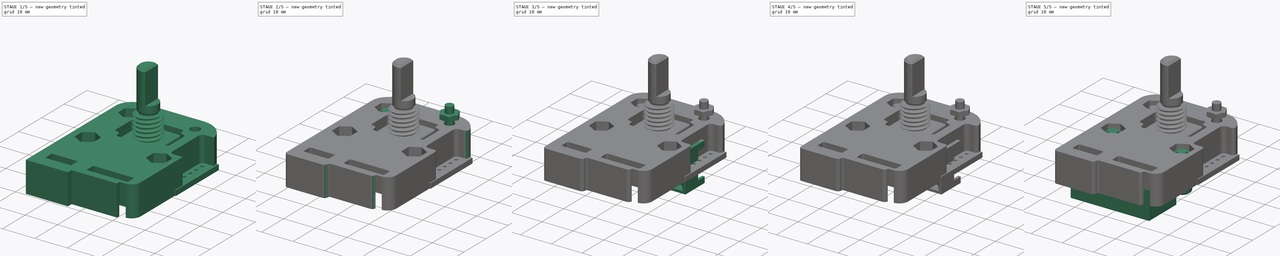
[diagram: build sequence overview — one tinted view per stage of 5, left to right]
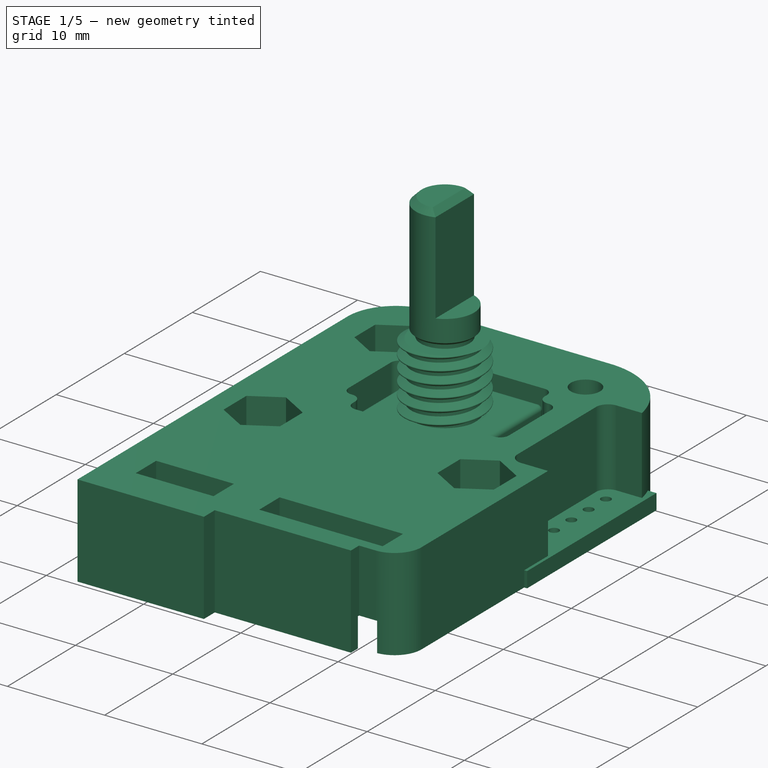
[diagram: stage 1 of 5 — iso view after this stage's code; geometry added in this stage tinted green]
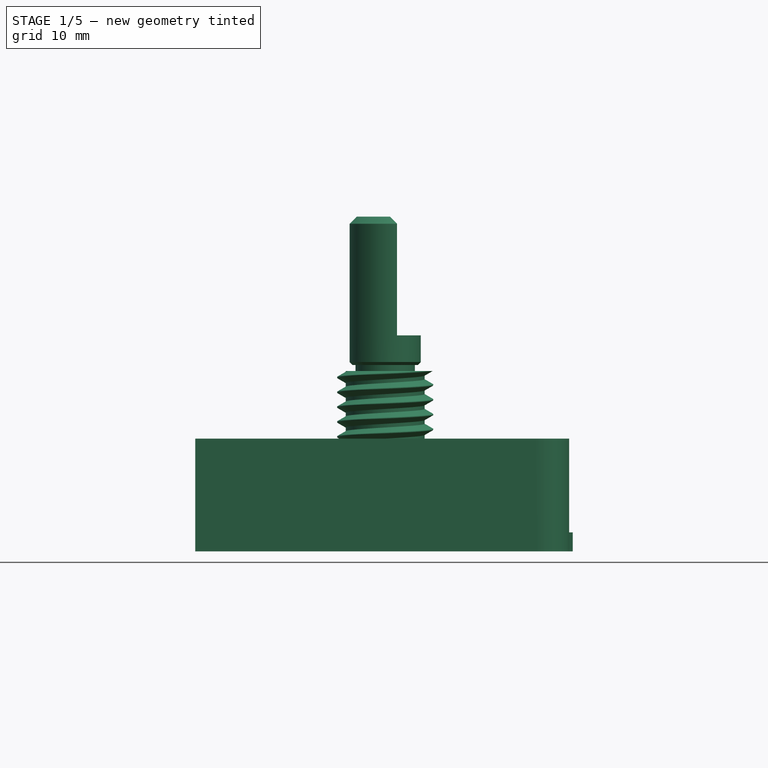
[diagram: stage 1 of 5 — front view after this stage's code; geometry added in this stage tinted green]
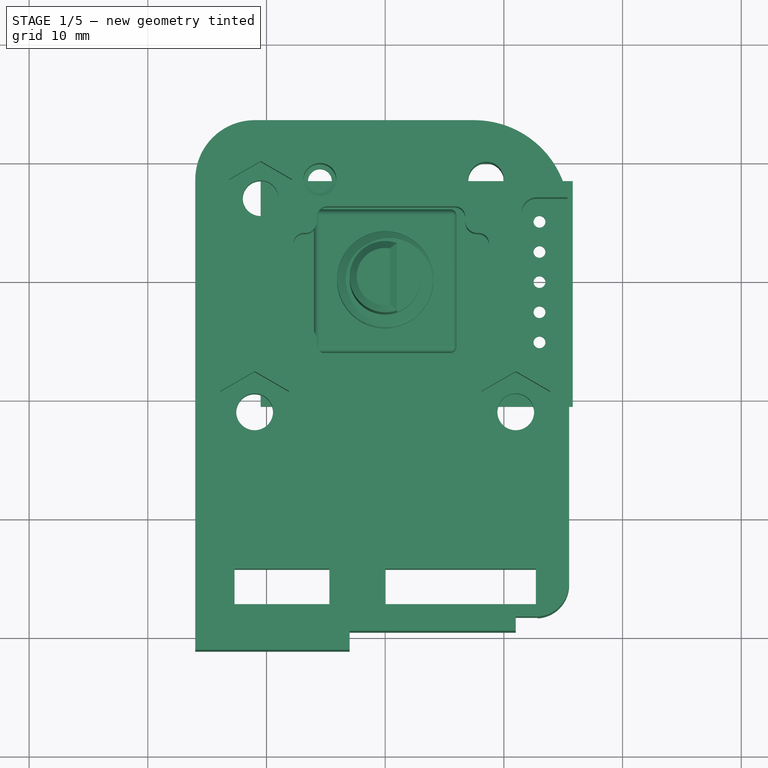
[diagram: stage 1 of 5 — top view after this stage's code; geometry added in this stage tinted green]
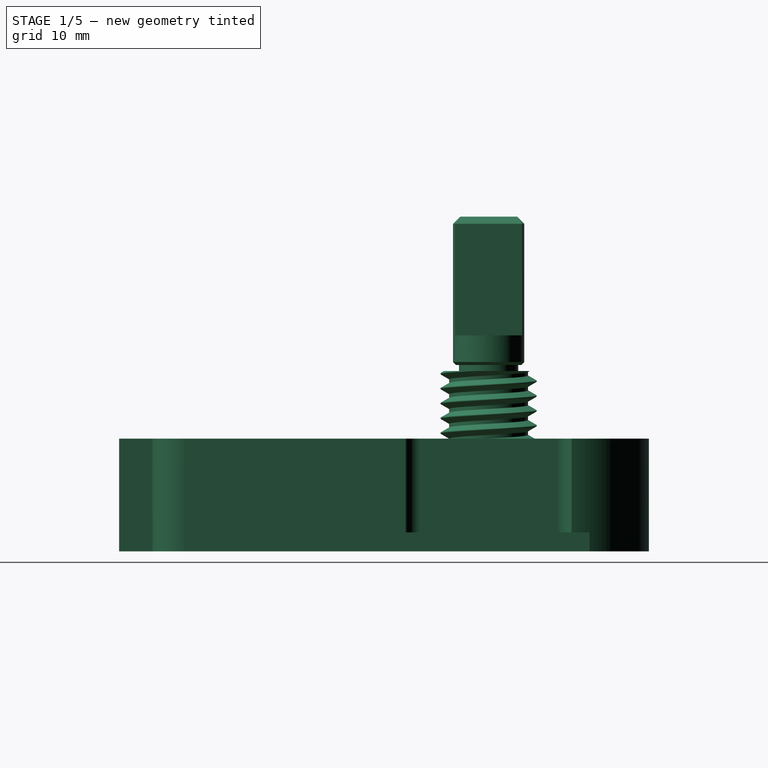
[diagram: stage 1 of 5 — right view after this stage's code; geometry added in this stage tinted green]
FCSTD DOCUMENT  (FreeCAD 0.18.4R)
Label: MJ_3d_holder_left_hybrid_2nd_rotary-asm
License: All rights reserved
LicenseURL: http://en.wikipedia.org/wiki/All_rights_reserved
objects: Sketcher::SketchObject×21, PartDesign::Pocket×12, Part::FeaturePython×10, PartDesign::Pad×9, Part::Feature×8, PartDesign::Body×7, PartDesign::Fillet×5, PartDesign::Chamfer×4, PartDesign::Plane×2, PartDesign::FeatureBase×1, Part::Part2DObjectPython×1, Part::Extrusion×1, Part::Compound×1, PartDesign::Boolean×1, App::DocumentObjectGroup×1
note: 104 computed .brp shape members not serialized (recipe doc carries the construction recipe); baked Part::Feature solids carry a one-line shape summary decoded from their .brp

FEATURE [Sketcher::SketchObject] Sketch036
  MapMode = 5
  Placement = pos=(0,0,0) rot=(1,0,0;3.14159rad)
  sketch-geometry (5):
    g0: LineSegment StartX=-16 StartY=-10 StartZ=0 EndX=-11 EndY=-10 EndZ=0
    g1: LineSegment StartX=-10 StartY=-11 StartZ=0 EndX=-10 EndY=-14 EndZ=0
    g2: LineSegment StartX=-10 StartY=-14 StartZ=0 EndX=-16 EndY=-14 EndZ=0
    g3: LineSegment StartX=-16 StartY=-14 StartZ=0 EndX=-16 EndY=-10 EndZ=0
    g4: ArcOfCircle CenterX=-11 CenterY=-11 CenterZ=0 NormalX=0 NormalY=0 NormalZ=1 AngleXU=0 Radius=1 StartAngle=1.12e-14 EndAngle=1.5708
  constraints (14):
    c: Coincident(g1,g2)
    c: Coincident(g2,g3)
    c: Coincident(g3,g0)
    c: Horizontal(g0)
    c: Horizontal(g2)
    c: Vertical(g1)
    c: Vertical(g3)
    c: DistanceX(g2,g2) = 6
    c: DistanceY(g3,g3) = 4
    c: DistanceY(g0,g-1) = 10
    c: DistanceX(g1,g-1) = 10
    c: Tangent(g0,g4) = 1.5708
    c: Tangent(g1,g4) = 1.5708
    c: Radius(g4) = 1
FEATURE [Sketcher::SketchObject] Sketch037
  MapMode = 5
  Support = -> [XY_Plane008]
  sketch-geometry (37):
    g0: GeomPoint X=0 Y=-21.98 Z=0
    g1: LineSegment [constr] StartX=-12.7 StartY=-15.63 StartZ=0 EndX=12.7 EndY=-15.63 EndZ=0
    g2: LineSegment [constr] StartX=12.7 StartY=-15.63 StartZ=0 EndX=12.7 EndY=-28.33 EndZ=0
    g3: LineSegment [constr] StartX=12.7 StartY=-28.33 StartZ=0 EndX=-12.7 EndY=-28.33 EndZ=0
    g4: LineSegment [constr] StartX=-12.7 StartY=-28.33 StartZ=0 EndX=-12.7 EndY=-15.63 EndZ=0
    g5: Circle [constr] CenterX=-10.16 CenterY=-25.79 CenterZ=0 NormalX=0 NormalY=0 NormalZ=1 AngleXU=0 Radius=0.5
    g6: Circle [constr] CenterX=2.54 CenterY=-25.79 CenterZ=0 NormalX=0 NormalY=0 NormalZ=1 AngleXU=0 Radius=0.5
    g7: Circle [constr] CenterX=10.16 CenterY=-25.79 CenterZ=0 NormalX=0 NormalY=0 NormalZ=1 AngleXU=0 Radius=0.5
    g8: Circle CenterX=-11 CenterY=-11 CenterZ=0 NormalX=0 NormalY=0 NormalZ=1 AngleXU=0 Radius=1.55
    g9: Circle CenterX=11 CenterY=-11 CenterZ=0 NormalX=0 NormalY=0 NormalZ=1 AngleXU=0 Radius=1.55
    g10: LineSegment StartX=-11 StartY=13.5 StartZ=0 EndX=7.5 EndY=13.5 EndZ=0
    g11: LineSegment StartX=15.5 StartY=5.5 StartZ=0 EndX=15.5 EndY=-25.53 EndZ=0
    g12: LineSegment StartX=-16 StartY=-31.13 StartZ=0 EndX=-16 EndY=8.5 EndZ=0
    g13: ArcOfCircle CenterX=-11 CenterY=8.5 CenterZ=0 NormalX=0 NormalY=0 NormalZ=1 AngleXU=0 Radius=5 StartAngle=1.5708 EndAngle=3.14159
    g14: ArcOfCircle CenterX=7.5 CenterY=5.5 CenterZ=0 NormalX=0 NormalY=0 NormalZ=1 AngleXU=0 Radius=8 StartAngle=0 EndAngle=1.5708
    g15: LineSegment StartX=-12.7 StartY=-24.29 StartZ=0 EndX=-4.7 EndY=-24.29 EndZ=0
    g16: LineSegment StartX=-4.7 StartY=-24.29 StartZ=0 EndX=-4.7 EndY=-27.29 EndZ=0
    g17: LineSegment StartX=-4.7 StartY=-27.29 StartZ=0 EndX=-12.7 EndY=-27.29 EndZ=0
    g18: LineSegment StartX=-12.7 StartY=-27.29 StartZ=0 EndX=-12.7 EndY=-24.29 EndZ=0
    g19: LineSegment StartX=1.5e-15 StartY=-24.29 StartZ=0 EndX=12.7 EndY=-24.29 EndZ=0
    g20: LineSegment StartX=12.7 StartY=-24.29 StartZ=0 EndX=12.7 EndY=-27.29 EndZ=0
    g21: LineSegment StartX=12.7 StartY=-27.29 StartZ=0 EndX=1.8e-15 EndY=-27.29 EndZ=0
    g22: LineSegment StartX=1.5e-15 StartY=-27.29 StartZ=0 EndX=1.5e-15 EndY=-24.29 EndZ=0
    g23: GeomPoint X=6.35 Y=-25.79 Z=0
    g24: LineSegment StartX=11 StartY=-29.53 StartZ=0 EndX=11 EndY=-28.33 EndZ=0
    g25: LineSegment StartX=11 StartY=-28.33 StartZ=0 EndX=12.7 EndY=-28.33 EndZ=0
    g26: Circle [constr] CenterX=-1e-16 CenterY=-30.87 CenterZ=0 NormalX=0 NormalY=0 NormalZ=1 AngleXU=0 Radius=0.5
    g27: Circle [constr] CenterX=2.54 CenterY=-30.87 CenterZ=0 NormalX=0 NormalY=0 NormalZ=1 AngleXU=0 Radius=0.5
    g28: Circle [constr] CenterX=5.08 CenterY=-30.87 CenterZ=0 NormalX=0 NormalY=0 NormalZ=1 AngleXU=0 Radius=0.5
    g29: LineSegment StartX=-3 StartY=-31.13 StartZ=0 EndX=-3 EndY=-29.53 EndZ=0
    g30: LineSegment StartX=-3 StartY=-29.53 StartZ=0 EndX=11 EndY=-29.53 EndZ=0
    g31: LineSegment StartX=-3 StartY=-31.13 StartZ=0 EndX=-16 EndY=-31.13 EndZ=0
    g32: ArcOfCircle CenterX=12.7 CenterY=-25.53 CenterZ=0 NormalX=0 NormalY=0 NormalZ=1 AngleXU=0 Radius=2.8 StartAngle=4.71239 EndAngle=6.28319
    g33: Circle CenterX=8.5 CenterY=8.5 CenterZ=0 NormalX=0 NormalY=0 NormalZ=1 AngleXU=0 Radius=1.5
    g34: Circle CenterX=-10.5 CenterY=7 CenterZ=0 NormalX=0 NormalY=0 NormalZ=1 AngleXU=0 Radius=1.5
    g35: Circle CenterX=0.5 CenterY=0 CenterZ=0 NormalX=0 NormalY=0 NormalZ=1 AngleXU=0 Radius=3.65
    g36: Circle CenterX=-5.5 CenterY=8.5 CenterZ=0 NormalX=0 NormalY=0 NormalZ=1 AngleXU=0 Radius=1.4
  constraints (102):
    c: PointOnObject(g0,g-2)
    c: Coincident(g1,g2)
    c: Coincident(g2,g3)
    c: Coincident(g3,g4)
    c: Coincident(g4,g1)
    c: Horizontal(g1)
    c: Horizontal(g3)
    c: Vertical(g2)
    c: Vertical(g4)
    c: DistanceY(g2,g2) = 12.7
    c: DistanceX(g1,g1) = 25.4
    c: Symmetric(g1,g2,g0)
    c: Horizontal(g7,g6)
    c: Horizontal(g6,g5)
    c: Equal(g7,g6)
    c: Equal(g6,g5)
    c: Diameter(g7) = 1
    c: DistanceX(g0,g6) = 2.54
    c: DistanceX(g5,g0) = 10.16
    c: DistanceX(g6,g7) = 7.62
    c: Equal(g9,g8)
    c: Symmetric(g8,g9,g-2)
    c: DistanceX(g8,g9) = 22
    c: Diameter(g9) = 3.1
    c: Coincident(g31,g12)
    c: Vertical(g11)
    c: Vertical(g12)
    c: Tangent(g12,g13) = 1.5708
    c: Tangent(g10,g13) = 1.5708
    c: Tangent(g10,g14) = 1.5708
    c: Tangent(g11,g14) = 1.5708
    c: Radius(g14) = 8
    c: DistanceX(g12,g1) = 3.3
    c: DistanceY(g31,g3) = 2.8
    c: Coincident(g15,g16)
    c: Coincident(g16,g17)
    c: Coincident(g17,g18)
    c: Coincident(g18,g15)
    c: Horizontal(g15)
    c: Horizontal(g17)
    c: Vertical(g16)
    c: Vertical(g18)
    c: Coincident(g19,g20)
    c: Coincident(g20,g21)
    c: Coincident(g21,g22)
    c: Coincident(g22,g19)
    c: Horizontal(g19)
    c: Horizontal(g21)
    c: Vertical(g20)
    c: Vertical(g22)
    c: Equal(g16,g22)
    c: DistanceY(g18,g18) = 3
    c: DistanceX(g17,g17) = 8
    c: DistanceX(g21,g21) = 12.7
    c: DistanceX(g15,g5) = 2.54
    c: Symmetric(g6,g7,g23)
    c: DistanceY(g6,g0) = 3.81
    c: Horizontal(g15,g19)
    c: Symmetric(g19,g20,g23)
    c: Vertical(g24)
    c: Coincident(g24,g25)
    c: Horizontal(g25)
    c: Equal(g28,g27)
    c: Equal(g27,g26)
    c: Horizontal(g28,g27)
    c: Horizontal(g27,g26)
    c: Diameter(g26) = 1
    c: Vertical(g27,g6)
    c: DistanceX(g27,g28) = 2.54
    c: DistanceX(g26,g27) = 2.54
    c: DistanceY(g26,g6) = 5.08
    c: Vertical(g29)
    c: Coincident(g29,g30)
    c: Horizontal(g30)
    c: Coincident(g24,g30)
    c: DistanceX(g31,g31) = 13
    c: DistanceY(g29,g3) = 1.2
    c: DistanceY(g24,g24) = 1.2
    c: DistanceX(g30,g30) = 14
    c: Tangent(g11,g32) = 1.5708
    c: Tangent(g25,g32) = -1.5708
    c: Vertical(g25,g2)
    c: Horizontal(g31)
    c: Coincident(g29,g31)
    c: DistanceX(g1,g11) = 2.8
    c: Radius(g13) = 5
    c: DistanceY(g8,g-1) = 11
    c: DistanceY(g29,g-1) = 31.13
    c: Horizontal(g10)
    c: Diameter(g33) = 3
    c: DistanceX(g-1,g33) = 8.5
    c: DistanceY(g-1,g33) = 8.5
    c: Diameter(g34) = 3
    c: DistanceX(g34,g-1) = 10.5
    c: DistanceY(g-1,g34) = 7
    c: PointOnObject(g35,g-1)
    c: DistanceX(g-1,g35) = 0.5
    c: Diameter(g35) = 7.3
    c: Diameter(g36) = 2.8
    c: DistanceY(g-1,g36) = 8.5
    c: DistanceX(g36,g33) = 14
    c: DistanceY(g-1,g14) = 5.5
FEATURE [PartDesign::Pad] Pad009
  Length = 9.5
  Length2 = 100
  Profile = -> Sketch037
  Type = 0
FEATURE [Sketcher::SketchObject] Sketch032  label="Sketch_rotary_7mm_pocket001"
  MapMode = 5
  Placement = pos=(0,0,9.5) rot=(0,0,1;0rad)
  Support = -> [Pad009]
  sketch-geometry (25):
    g0: LineSegment StartX=7.85 StartY=-4 StartZ=0 EndX=7.75 EndY=-4 EndZ=0
    g1: LineSegment StartX=-7.75 StartY=-3.1 StartZ=0 EndX=-7.75 EndY=3.1 EndZ=0
    g2: LineSegment StartX=-6.85 StartY=4 StartZ=0 EndX=-6.75 EndY=4 EndZ=0
    g3: LineSegment StartX=8.75 StartY=3.1 StartZ=0 EndX=8.75 EndY=-3.1 EndZ=0
    g4: LineSegment StartX=-4.85 StartY=6.25 StartZ=0 EndX=5.85 EndY=6.25 EndZ=0
    g5: LineSegment StartX=6.75 StartY=5.35 StartZ=0 EndX=6.75 EndY=5 EndZ=0
    g6: LineSegment StartX=5.85 StartY=-6.25 StartZ=0 EndX=-4.85 EndY=-6.25 EndZ=0
    g7: LineSegment StartX=-5.75 StartY=-5.35 StartZ=0 EndX=-5.75 EndY=-5 EndZ=0
    g8: LineSegment StartX=7.75 StartY=4 StartZ=0 EndX=7.85 EndY=4 EndZ=0
    g9: LineSegment StartX=-6.75 StartY=-4 StartZ=0 EndX=-6.85 EndY=-4 EndZ=0
    g10: LineSegment StartX=-5.75 StartY=5 StartZ=0 EndX=-5.75 EndY=5.35 EndZ=0
    g11: LineSegment StartX=6.75 StartY=-5 StartZ=0 EndX=6.75 EndY=-5.35 EndZ=0
    g12: GeomPoint X=0.5 Y=0 Z=0
    g13: ArcOfCircle CenterX=-6.75 CenterY=-5 CenterZ=0 NormalX=0 NormalY=0 NormalZ=1 AngleXU=0 Radius=1 StartAngle=4e-16 EndAngle=1.5708
    g14: ArcOfCircle CenterX=7.75 CenterY=-5 CenterZ=0 NormalX=0 NormalY=0 NormalZ=1 AngleXU=0 Radius=1 StartAngle=1.5708 EndAngle=3.14159
    g15: ArcOfCircle CenterX=7.75 CenterY=5 CenterZ=0 NormalX=0 NormalY=0 NormalZ=1 AngleXU=0 Radius=1 StartAngle=3.14159 EndAngle=4.71239
    g16: ArcOfCircle CenterX=-6.75 CenterY=5 CenterZ=0 NormalX=0 NormalY=0 NormalZ=1 AngleXU=0 Radius=1 StartAngle=4.71239 EndAngle=6.28319
    g17: ArcOfCircle CenterX=-4.85 CenterY=-5.35 CenterZ=0 NormalX=0 NormalY=0 NormalZ=1 AngleXU=0 Radius=0.9 StartAngle=3.14159 EndAngle=4.71239
    g18: ArcOfCircle CenterX=5.85 CenterY=-5.35 CenterZ=0 NormalX=0 NormalY=0 NormalZ=1 AngleXU=0 Radius=0.9 StartAngle=4.71239 EndAngle=6.28319
    g19: ArcOfCircle CenterX=7.85 CenterY=-3.1 CenterZ=0 NormalX=0 NormalY=0 NormalZ=1 AngleXU=0 Radius=0.9 StartAngle=4.71239 EndAngle=6.28319
    g20: ArcOfCircle CenterX=-6.85 CenterY=-3.1 CenterZ=0 NormalX=0 NormalY=0 NormalZ=1 AngleXU=0 Radius=0.9 StartAngle=3.14159 EndAngle=4.71239
    g21: ArcOfCircle CenterX=-6.85 CenterY=3.1 CenterZ=0 NormalX=0 NormalY=0 NormalZ=1 AngleXU=0 Radius=0.9 StartAngle=1.5708 EndAngle=3.14159
    g22: ArcOfCircle CenterX=-4.85 CenterY=5.35 CenterZ=0 NormalX=0 NormalY=0 NormalZ=1 AngleXU=0 Radius=0.9 StartAngle=1.5708 EndAngle=3.14159
    g23: ArcOfCircle CenterX=5.85 CenterY=5.35 CenterZ=0 NormalX=0 NormalY=0 NormalZ=1 AngleXU=0 Radius=0.9 StartAngle=0 EndAngle=1.5708
    g24: ArcOfCircle CenterX=7.85 CenterY=3.1 CenterZ=0 NormalX=0 NormalY=0 NormalZ=1 AngleXU=0 Radius=0.9 StartAngle=1e-16 EndAngle=1.5708
  constraints (56):
    c: Horizontal(g0)
    c: Horizontal(g2)
    c: Vertical(g1)
    c: Vertical(g3)
    c: Horizontal(g4)
    c: Horizontal(g6)
    c: Vertical(g5)
    c: Vertical(g7)
    c: Tangent(g2,g8)
    c: Tangent(g0,g9)
    c: Tangent(g7,g10)
    c: Tangent(g5,g11)
    c: PointOnObject(g12,g-1)
    c: DistanceX(g-1,g12) = 0.5
    c: Tangent(g9,g13) = -1.5708
    c: Tangent(g7,g13) = -1.5708
    c: Tangent(g11,g14) = -1.5708
    c: Tangent(g0,g14) = -1.5708
    c: Tangent(g8,g15) = -1.5708
    c: Tangent(g5,g15) = -1.5708
    c: Tangent(g2,g16) = -1.5708
    c: Tangent(g10,g16) = -1.5708
    c: Equal(g16,g13)
    c: Equal(g13,g14)
    c: Equal(g14,g15)
    c: Radius(g14) = 1
    c: DistanceY(g9,g2) = 8
    c: DistanceX(g10,g5) = 12.5
    c: Tangent(g7,g17) = 1.5708
    c: Tangent(g6,g17) = 1.5708
    c: Tangent(g11,g18) = 1.5708
    c: Tangent(g6,g18) = 1.5708
    c: Tangent(g0,g19) = 1.5708
    c: Tangent(g3,g19) = 1.5708
    c: Tangent(g9,g20) = 1.5708
    c: Tangent(g1,g20) = 1.5708
    c: Tangent(g1,g21) = 1.5708
    c: Tangent(g2,g21) = 1.5708
    c: Tangent(g10,g22) = 1.5708
    c: Tangent(g4,g22) = 1.5708
    c: Tangent(g5,g23) = 1.5708
    c: Tangent(g4,g23) = 1.5708
    c: Tangent(g3,g24) = 1.5708
    c: Tangent(g8,g24) = 1.5708
    c: Equal(g22,g23)
    c: Equal(g23,g24)
    c: Equal(g24,g19)
    c: Equal(g19,g18)
    c: Equal(g18,g17)
    c: Equal(g17,g20)
    c: Equal(g20,g21)
    c: Radius(g18) = 0.9
    c: DistanceY(g6,g4) = 12.5
    c: DistanceX(g1,g3) = 16.5
    c: Symmetric(g4,g6,g12)
    c: Symmetric(g3,g1,g12)
FEATURE [PartDesign::Pocket] Pocket015  label="RotaryPocket001"
  BaseFeature = -> Pad009
  Length = 7
  Length2 = 100
  Profile = -> Sketch032
  Type = 0
FEATURE [Sketcher::SketchObject] Sketch035
  MapMode = 5
  Placement = pos=(0,0,9.5) rot=(0,0,1;0rad)
  Support = -> [Pocket015]
  sketch-geometry (7):
    g0: LineSegment StartX=12.75 StartY=7 StartZ=0 EndX=16.5 EndY=7 EndZ=0
    g1: LineSegment StartX=16.5 StartY=7 StartZ=0 EndX=16.5 EndY=-7 EndZ=0
    g2: LineSegment StartX=16.5 StartY=-7 StartZ=0 EndX=12.75 EndY=-7 EndZ=0
    g3: LineSegment StartX=11.5 StartY=-5.75 StartZ=0 EndX=11.5 EndY=5.75 EndZ=0
    g4: GeomPoint X=13.5 Y=0 Z=0
    g5: ArcOfCircle CenterX=12.75 CenterY=5.75 CenterZ=0 NormalX=0 NormalY=0 NormalZ=1 AngleXU=0 Radius=1.25 StartAngle=1.5708 EndAngle=3.14159
    g6: ArcOfCircle CenterX=12.75 CenterY=-5.75 CenterZ=0 NormalX=0 NormalY=0 NormalZ=1 AngleXU=0 Radius=1.25 StartAngle=3.14159 EndAngle=4.71239
  constraints (17):
    c: Coincident(g0,g1)
    c: Coincident(g1,g2)
    c: Horizontal(g0)
    c: Horizontal(g2)
    c: DistanceY(g1,g0) = 14
    c: PointOnObject(g4,g-1)
    c: DistanceX(g-1,g4) = 13.5
    c: Tangent(g3,g5) = 1.5708
    c: Tangent(g0,g5) = 1.5708
    c: Tangent(g2,g6) = 1.5708
    c: Tangent(g3,g6) = 1.5708
    c: Equal(g6,g5)
    c: DistanceX(g3,g0) = 5
    c: DistanceX(g3,g4) = 2
    c: Vertical(g3)
    c: Symmetric(g1,g0,g-1)
    c: Radius(g5) = 1.25
FEATURE [PartDesign::Pocket] Pocket016  label="RotaryPinsPocke001"
  BaseFeature = -> Pocket015
  Length = 10
  Length2 = 100
  Profile = -> Sketch035
  Type = 0
FEATURE [Sketcher::SketchObject] Sketch031
  MapMode = 5
  Placement = pos=(0,0,9.5) rot=(0,0,1;0rad)
  Support = -> [Pocket016]
  sketch-geometry (14):
    g0: LineSegment StartX=-8.1 StartY=-12.6743 StartZ=0 EndX=-8.1 EndY=-9.32568 EndZ=0
    g1: LineSegment StartX=-8.1 StartY=-9.32568 StartZ=0 EndX=-11 EndY=-7.65137 EndZ=0
    g2: LineSegment StartX=-11 StartY=-7.65137 StartZ=0 EndX=-13.9 EndY=-9.32568 EndZ=0
    g3: LineSegment StartX=-13.9 StartY=-9.32568 StartZ=0 EndX=-13.9 EndY=-12.6743 EndZ=0
    g4: LineSegment StartX=-13.9 StartY=-12.6743 StartZ=0 EndX=-11 EndY=-14.3486 EndZ=0
    g5: LineSegment StartX=-11 StartY=-14.3486 StartZ=0 EndX=-8.1 EndY=-12.6743 EndZ=0
    g6: Circle [constr] CenterX=-11 CenterY=-11 CenterZ=0 NormalX=0 NormalY=0 NormalZ=1 AngleXU=0 Radius=3.34863
    g7: LineSegment StartX=13.9 StartY=-12.6743 StartZ=0 EndX=13.9 EndY=-9.32568 EndZ=0
    g8: LineSegment StartX=13.9 StartY=-9.32568 StartZ=0 EndX=11 EndY=-7.65137 EndZ=0
    g9: LineSegment StartX=11 StartY=-7.65137 StartZ=0 EndX=8.1 EndY=-9.32568 EndZ=0
    g10: LineSegment StartX=8.1 StartY=-9.32568 StartZ=0 EndX=8.1 EndY=-12.6743 EndZ=0
    g11: LineSegment StartX=8.1 StartY=-12.6743 StartZ=0 EndX=11 EndY=-14.3486 EndZ=0
    g12: LineSegment StartX=11 StartY=-14.3486 StartZ=0 EndX=13.9 EndY=-12.6743 EndZ=0
    g13: Circle [constr] CenterX=11 CenterY=-11 CenterZ=0 NormalX=0 NormalY=0 NormalZ=1 AngleXU=0 Radius=3.34863
  constraints (34):
    c: Coincident(g0,g1)
    c: Coincident(g1,g2)
    c: Coincident(g2,g3)
    c: Coincident(g3,g4)
    c: Coincident(g4,g5)
    c: Coincident(g5,g0)
    c: Equal(g0, g1-g5) x5
    c: PointOnObject(g0,g6)
    c: PointOnObject(g1,g6)
    c: PointOnObject(g2,g6)
    c: PointOnObject(g3,g6)
    c: PointOnObject(g4,g6)
    c: PointOnObject(g5,g6)
    c: Coincident(g7,g8)
    c: Coincident(g8,g9)
    c: Coincident(g9,g10)
    c: Coincident(g10,g11)
    c: Coincident(g11,g12)
    c: Coincident(g12,g7)
    c: Equal(g7, g8-g12) x5
    c: PointOnObject(g7,g13)
    c: PointOnObject(g8,g13)
    c: PointOnObject(g9,g13)
    c: PointOnObject(g10,g13)
    c: PointOnObject(g11,g13)
    c: PointOnObject(g12,g13)
    c: DistanceY(g6,g-1) = 11
    c: Horizontal(g13,g6)
    c: DistanceX(g6,g-1) = 11
    c: DistanceX(g6,g13) = 22
    c: Vertical(g3)
    c: Vertical(g7)
    c: DistanceX(g3,g0) = 5.8
    c: DistanceX(g10,g7) = 5.8
FEATURE [PartDesign::Pocket] Pocket014  label="M3HexNutsPocket001"
  BaseFeature = -> Pocket016
  Length = 4.5
  Length2 = 100
  Profile = -> Sketch031
  Type = 0
FEATURE [Sketcher::SketchObject] Sketch034
  MapMode = 5
  Placement = pos=(0,0,9.5) rot=(0,0,1;0rad)
  Support = -> [Pocket014]
  sketch-geometry (7):
    g0: LineSegment StartX=-7.85 StartY=5.47002 StartZ=0 EndX=-7.85 EndY=8.52998 EndZ=0
    g1: LineSegment StartX=-7.85 StartY=8.52998 StartZ=0 EndX=-10.5 EndY=10.06 EndZ=0
    g2: LineSegment StartX=-10.5 StartY=10.06 StartZ=0 EndX=-13.15 EndY=8.52998 EndZ=0
    g3: LineSegment StartX=-13.15 StartY=8.52998 StartZ=0 EndX=-13.15 EndY=5.47002 EndZ=0
    g4: LineSegment StartX=-13.15 StartY=5.47002 StartZ=0 EndX=-10.5 EndY=3.94004 EndZ=0
    g5: LineSegment StartX=-10.5 StartY=3.94004 StartZ=0 EndX=-7.85 EndY=5.47002 EndZ=0
    g6: Circle [constr] CenterX=-10.5 CenterY=7 CenterZ=0 NormalX=0 NormalY=0 NormalZ=1 AngleXU=0 Radius=3.05996
  constraints (17):
    c: Coincident(g0,g1)
    c: Coincident(g1,g2)
    c: Coincident(g2,g3)
    c: Coincident(g3,g4)
    c: Coincident(g4,g5)
    c: Coincident(g5,g0)
    c: Equal(g0, g1-g5) x5
    c: PointOnObject(g0,g6)
    c: PointOnObject(g1,g6)
    c: PointOnObject(g2,g6)
    c: PointOnObject(g3,g6)
    c: PointOnObject(g4,g6)
    c: PointOnObject(g5,g6)
    c: DistanceY(g-1,g6) = 7
    c: DistanceX(g6,g-1) = 10.5
    c: Distance(g2,g0) = 5.3
    c: Angle(g4) = -0.523599
FEATURE [PartDesign::Pocket] Pocket013  label="M25HexNutPocket001"
  BaseFeature = -> Pocket014
  Length = 4.5
  Length2 = 100
  Profile = -> Sketch034
  Type = 0
FEATURE [Sketcher::SketchObject] Sketch033  label="GrayHill_Mainpocket_3mm_Sketch001"
  MapMode = 5
  Placement = pos=(0,0,0) rot=(1,0,0;3.14159rad)
  Support = -> [Pocket013]
  sketch-geometry (5):
    g0: GeomPoint X=0 Y=22 Z=0
    g1: LineSegment StartX=12.85 StartY=15.5 StartZ=0 EndX=-12.85 EndY=15.5 EndZ=0
    g2: LineSegment StartX=-12.85 StartY=15.5 StartZ=0 EndX=-12.85 EndY=28.5 EndZ=0
    g3: LineSegment StartX=-12.85 StartY=28.5 StartZ=0 EndX=12.85 EndY=28.5 EndZ=0
    g4: LineSegment StartX=12.85 StartY=28.5 StartZ=0 EndX=12.85 EndY=15.5 EndZ=0
  constraints (13):
    c: PointOnObject(g0,g-2)
    c: DistanceY(g-1,g0) = 22
    c: Coincident(g1,g2)
    c: Coincident(g2,g3)
    c: Coincident(g3,g4)
    c: Coincident(g4,g1)
    c: Horizontal(g1)
    c: Horizontal(g3)
    c: Vertical(g2)
    c: Vertical(g4)
    c: DistanceY(g2,g2) = 13
    c: DistanceX(g3,g3) = 25.7
    c: Symmetric(g1,g2,g0)
FEATURE [PartDesign::Pocket] Pocket017  label="Grayhill_main_3mm_Pocket001"
  BaseFeature = -> Pocket013
  Length = 3
  Length2 = 100
  Profile = -> Sketch033
  Type = 0
FEATURE [PartDesign::Pocket] Pocket012  label="TempSensor_cutout_Pocket001"
  BaseFeature = -> Pocket017
  Length = 2.5
  Length2 = 100
  Profile = -> Sketch036
  Type = 0
FEATURE [PartDesign::Body] Body006  label="3d_holder_left_hybrid_2nd_rotary001"
  Group = -> [Sketch037,Pad009,Sketch033,Sketch038,Sketch032,Pocket015,Sketch035,Pocket016,Sketch031,Pocket014,Sketch034,Pocket013,Pocket017,Sketch036,Pocket012,Pocket011,Fillet005,Fillet006,Sketch039,Pocket018]
  Origin = -> Origin008
  Tip = -> Pocket018
FEATURE [Part::FeaturePython] Nut004  label="M2.5-Nut002"  # Fasteners workbench fastener (typed FeaturePython)
  Placement = pos=(-5.5,8.5,2) rot=(-0.258819,0.965926,0;3.14159rad)
  diameter = 3
  invert = false
  matchOuter = false
  offset = 0
  thread = false
  type = 9
FEATURE [PartDesign::Boolean] Boolean
  Group = -> [Part__Feature008,Part__Feature007]
  Type = 0
FEATURE [PartDesign::Body] Body  label="KY040_Fused_Body"
  Group = -> [Boolean]
  Origin = -> Origin
  Placement = pos=(0.5,0,11.1) rot=(1,0,0;3.14159rad)
  Tip = -> Boolean
FEATURE [App::DocumentObjectGroup] Group  label="3d_holder_left_hybrid-2nd_rotary-assembly"
  Group = -> [Part__Feature004,Screw001,Screw,Nut,Nut001,Compound,Nut002,Screw002,Screw003,Part__Feature005,Part__Feature006,Screw004,Nut003,Body006,Nut004,Body]
note: 1 file-system path scrubbed to <path> (originals preserved in the JSON sidecar)
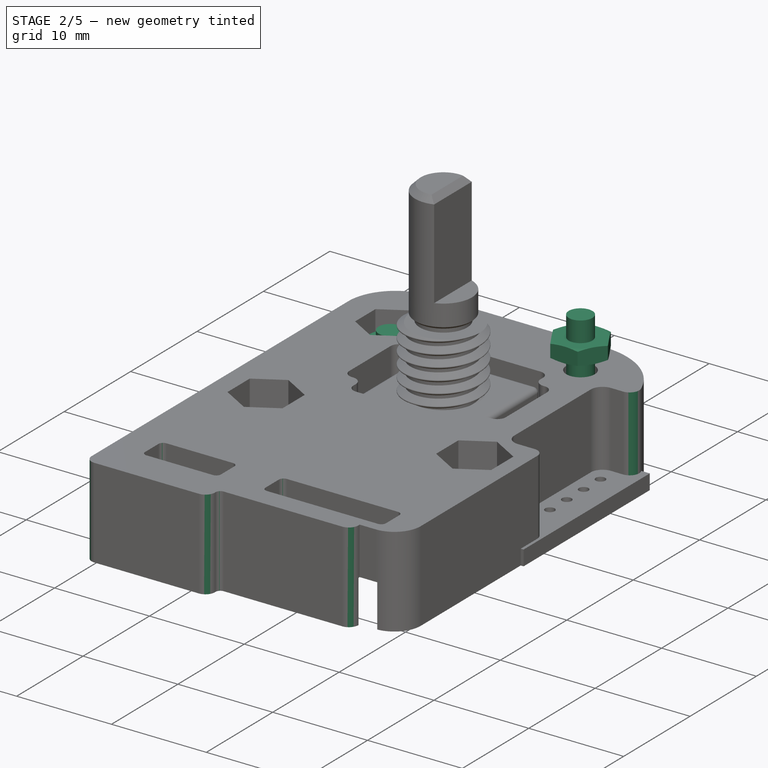
[diagram: stage 2 of 5 — iso view after this stage's code; geometry added in this stage tinted green]
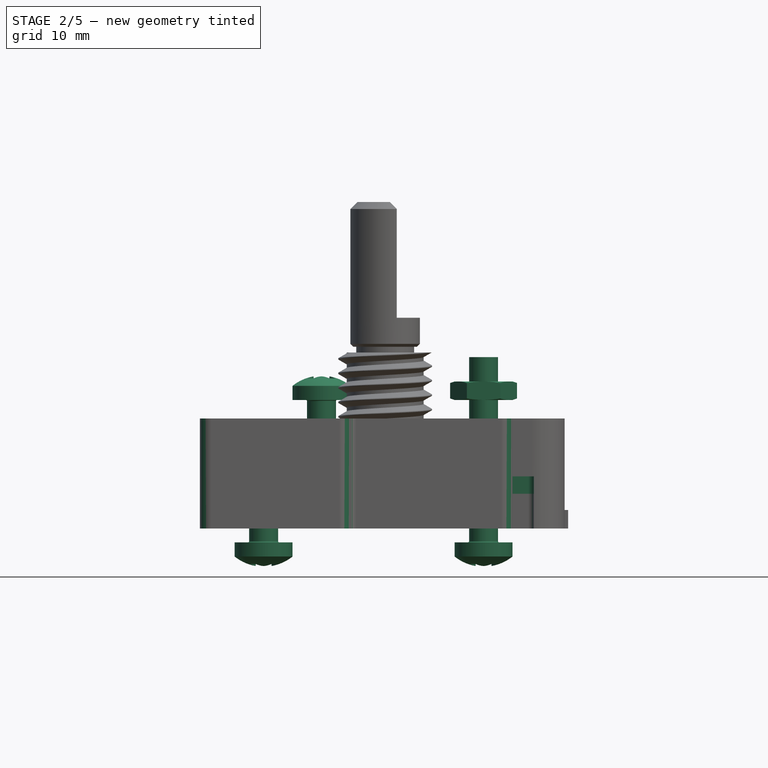
[diagram: stage 2 of 5 — front view after this stage's code; geometry added in this stage tinted green]
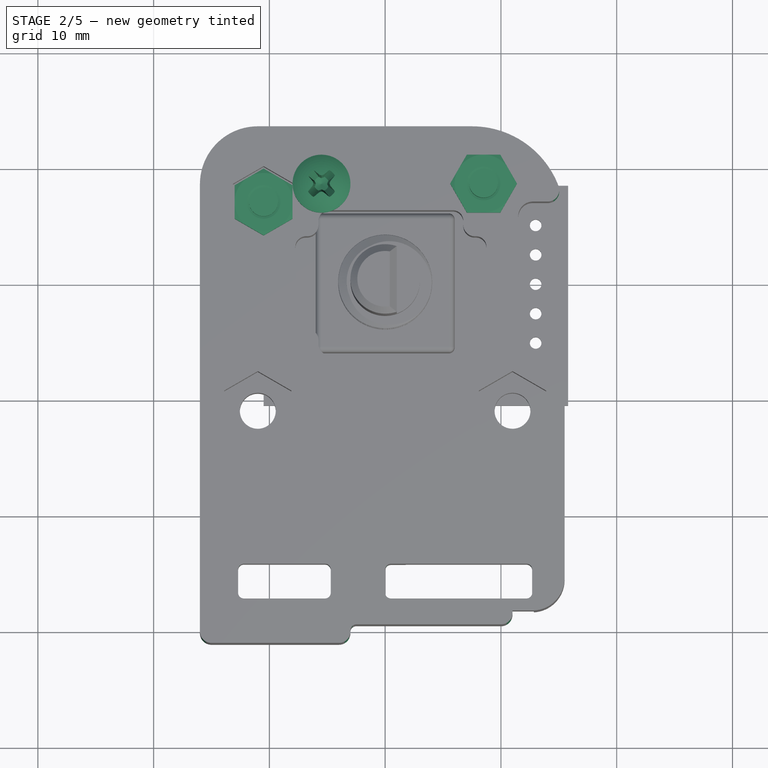
[diagram: stage 2 of 5 — top view after this stage's code; geometry added in this stage tinted green]
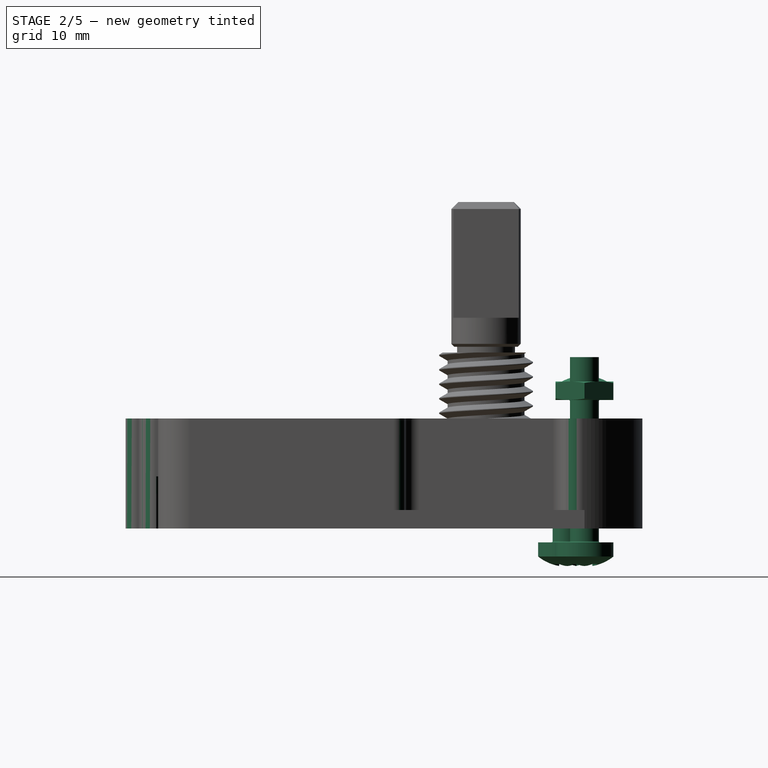
[diagram: stage 2 of 5 — right view after this stage's code; geometry added in this stage tinted green]
FEATURE [Part::FeaturePython] Nut002  label="M2.5-Nut"  # Fasteners workbench fastener (typed FeaturePython)
  Placement = pos=(-10.5,7,6) rot=(0,0,1;0.523599rad)
  diameter = 3
  invert = false
  matchOuter = false
  offset = 0
  thread = false
  type = 9
FEATURE [Part::FeaturePython] Screw002  label="M2.5x10-Screw"  # Fasteners workbench fastener (typed FeaturePython)
  Placement = pos=(-10.5,7,-1.2) rot=(0,1,0;3.14159rad)
  diameter = 3
  invert = false
  length = 5
  lengthCustom = 10
  matchOuter = false
  offset = 0
  thread = false
  type = 33
FEATURE [Part::FeaturePython] Screw003  label="M2.5x16-Screw"  # Fasteners workbench fastener (typed FeaturePython)
  Placement = pos=(8.5,8.5,-1.2) rot=(0,1,0;3.14159rad)
  diameter = 3
  invert = false
  length = 8
  lengthCustom = 16
  matchOuter = false
  offset = 0
  thread = false
  type = 33
FEATURE [Part::Feature] Part__Feature005  label="PinHeader_1x05_P254mm_Vertical"
  Placement = pos=(13.5,5.08,0) rot=(0,0,1;0rad)
  shape: bbox 2.54 x 12.7 x 11.54 mm, 124 faces (baked)
FEATURE [Part::Feature] Part__Feature006  label="PinSocket_1x05_P254mm_Vertical"
  Placement = pos=(13.5,5.08,9.5) rot=(0,1,0;3.14159rad)
  shape: bbox 2.54 x 12.7 x 10.1 mm, 165 faces (baked)
FEATURE [Part::Feature] Part__Feature007  label="KY040_M8x7.0-ScrewTap"
  Placement = pos=(0,0,15.2) rot=(0,0,1;0rad)
  shape: bbox 10.62 x 11.9 x 10 mm, 30 faces (baked)
FEATURE [Part::Feature] Part__Feature008  label="KY040_Body"
  shape: bbox 26.3 x 19 x 28.2 mm, 42 faces (baked)
FEATURE [Part::FeaturePython] Screw004  label="M2.5x10-Screw001"  # Fasteners workbench fastener (typed FeaturePython)
  Placement = pos=(-5.5,8.5,11.1) rot=(0,0,1;0rad)
  diameter = 3
  invert = false
  length = 5
  lengthCustom = 10
  matchOuter = false
  offset = 0
  thread = false
  type = 33
FEATURE [Part::FeaturePython] Nut003  label="M2.5-Nut001"  # Fasteners workbench fastener (typed FeaturePython)
  Placement = pos=(8.5,8.5,11.1) rot=(0,0,1;0rad)
  diameter = 3
  invert = false
  matchOuter = false
  offset = 0
  thread = false
  type = 9
FEATURE [Sketcher::SketchObject] Sketch038  label="Grayhill_bottom_pocket_1_4mm_Sketch001"
  MapMode = 5
  Placement = pos=(0,0,3) rot=(1,0,0;3.14159rad)
  Support = -> [Pocket012]
  sketch-geometry (35):
    g0: GeomPoint X=0 Y=22 Z=0
    g1: LineSegment [constr] StartX=12.85 StartY=15.5 StartZ=0 EndX=-12.85 EndY=15.5 EndZ=0
    g2: LineSegment [constr] StartX=-12.85 StartY=15.5 StartZ=0 EndX=-12.85 EndY=28.5 EndZ=0
    g3: LineSegment [constr] StartX=-12.85 StartY=28.5 StartZ=0 EndX=12.85 EndY=28.5 EndZ=0
    g4: LineSegment [constr] StartX=12.85 StartY=28.5 StartZ=0 EndX=12.85 EndY=15.5 EndZ=0
    g5: LineSegment [constr] StartX=12.85 StartY=20.5 StartZ=0 EndX=-12.85 EndY=20.5 EndZ=0
    g6: LineSegment [constr] StartX=-12.85 StartY=20.5 StartZ=0 EndX=-12.85 EndY=23.5 EndZ=0
    g7: LineSegment [constr] StartX=-12.85 StartY=23.5 StartZ=0 EndX=12.85 EndY=23.5 EndZ=0
    g8: LineSegment [constr] StartX=12.85 StartY=23.5 StartZ=0 EndX=12.85 EndY=20.5 EndZ=0
    g9: LineSegment [constr] StartX=1.5 StartY=15.5 StartZ=0 EndX=-1.5 EndY=15.5 EndZ=0
    g10: LineSegment [constr] StartX=-1.5 StartY=15.5 StartZ=0 EndX=-1.5 EndY=28.5 EndZ=0
    g11: LineSegment [constr] StartX=-1.5 StartY=28.5 StartZ=0 EndX=1.5 EndY=28.5 EndZ=0
    g12: LineSegment [constr] StartX=1.5 StartY=28.5 StartZ=0 EndX=1.5 EndY=15.5 EndZ=0
    g13: GeomPoint X=12.85 Y=22 Z=0
    g14: Circle CenterX=0 CenterY=22 CenterZ=0 NormalX=0 NormalY=0 NormalZ=1 AngleXU=0 Radius=1.8
    g15: LineSegment StartX=-12.85 StartY=20.5 StartZ=0 EndX=-3.5 EndY=20.5 EndZ=0
    g16: LineSegment StartX=-1.5 StartY=18.5 StartZ=0 EndX=-1.5 EndY=15.5 EndZ=0
    g17: LineSegment StartX=-1.5 StartY=15.5 StartZ=0 EndX=-12.85 EndY=15.5 EndZ=0
    g18: LineSegment StartX=-12.85 StartY=15.5 StartZ=0 EndX=-12.85 EndY=20.5 EndZ=0
    g19: LineSegment StartX=1.5 StartY=15.5 StartZ=0 EndX=12.85 EndY=15.5 EndZ=0
    g20: LineSegment StartX=12.85 StartY=15.5 StartZ=0 EndX=12.85 EndY=20.5 EndZ=0
    g21: LineSegment StartX=12.85 StartY=20.5 StartZ=0 EndX=3.5 EndY=20.5 EndZ=0
    g22: LineSegment StartX=1.5 StartY=18.5 StartZ=0 EndX=1.5 EndY=15.5 EndZ=0
    g23: LineSegment StartX=-12.85 StartY=23.5 StartZ=0 EndX=-3.5 EndY=23.5 EndZ=0
    g24: LineSegment StartX=-1.5 StartY=25.5 StartZ=0 EndX=-1.5 EndY=28.5 EndZ=0
    g25: LineSegment StartX=-1.5 StartY=28.5 StartZ=0 EndX=-12.85 EndY=28.5 EndZ=0
    g26: LineSegment StartX=-12.85 StartY=28.5 StartZ=0 EndX=-12.85 EndY=23.5 EndZ=0
    g27: LineSegment StartX=1.5 StartY=28.5 StartZ=0 EndX=12.85 EndY=28.5 EndZ=0
    g28: LineSegment StartX=12.85 StartY=28.5 StartZ=0 EndX=12.85 EndY=23.5 EndZ=0
    g29: LineSegment StartX=12.85 StartY=23.5 StartZ=0 EndX=3.5 EndY=23.5 EndZ=0
    g30: LineSegment StartX=1.5 StartY=25.5 StartZ=0 EndX=1.5 EndY=28.5 EndZ=0
    g31: ArcOfCircle CenterX=3.5 CenterY=25.5 CenterZ=0 NormalX=0 NormalY=0 NormalZ=1 AngleXU=0 Radius=2 StartAngle=3.14159 EndAngle=4.71239
    g32: ArcOfCircle CenterX=3.5 CenterY=18.5 CenterZ=0 NormalX=0 NormalY=0 NormalZ=1 AngleXU=0 Radius=2 StartAngle=1.5708 EndAngle=3.14159
    g33: ArcOfCircle CenterX=-3.5 CenterY=18.5 CenterZ=0 NormalX=0 NormalY=0 NormalZ=1 AngleXU=0 Radius=2 StartAngle=6e-16 EndAngle=1.5708
    g34: ArcOfCircle CenterX=-3.5 CenterY=25.5 CenterZ=0 NormalX=0 NormalY=0 NormalZ=1 AngleXU=0 Radius=2 StartAngle=4.71239 EndAngle=6.28319
  constraints (87):
    c: PointOnObject(g0,g-2)
    c: DistanceY(g-1,g0) = 22
    c: Coincident(g1,g2)
    c: Coincident(g2,g3)
    c: Coincident(g3,g4)
    c: Coincident(g4,g1)
    c: Horizontal(g1)
    c: Horizontal(g3)
    c: Vertical(g2)
    c: Vertical(g4)
    c: DistanceY(g2,g2) = 13
    c: DistanceX(g1,g1) = 25.7
    c: Symmetric(g1,g2,g0)
    c: Coincident(g5,g6)
    c: Coincident(g6,g7)
    c: Coincident(g7,g8)
    c: Coincident(g8,g5)
    c: Horizontal(g5)
    c: Horizontal(g7)
    c: Vertical(g6)
    c: Vertical(g8)
    c: PointOnObject(g5,g4)
    c: PointOnObject(g6,g2)
    c: Coincident(g9,g10)
    c: Coincident(g10,g11)
    c: Coincident(g11,g12)
    c: Coincident(g12,g9)
    c: Horizontal(g11)
    c: Vertical(g10)
    c: Vertical(g12)
    c: PointOnObject(g9,g1)
    c: PointOnObject(g10,g3)
    c: DistanceY(g5,g7) = 3
    c: DistanceX(g9,g9) = 3
    c: Symmetric(g9,g9,g-2)
    c: Symmetric(g5,g7,g13)
    c: Horizontal(g13,g0)
    c: Coincident(g14,g0)
    c: Diameter(g14) = 3.6
    c: Coincident(g16,g17)
    c: Coincident(g17,g18)
    c: Coincident(g18,g15)
    c: Horizontal(g15)
    c: Horizontal(g17)
    c: Vertical(g16)
    c: Vertical(g18)
    c: Coincident(g15,g5)
    c: Coincident(g16,g9)
    c: Coincident(g19,g20)
    c: Coincident(g20,g21)
    c: Coincident(g22,g19)
    c: Horizontal(g19)
    c: Horizontal(g21)
    c: Vertical(g20)
    c: Vertical(g22)
    c: Coincident(g19,g9)
    c: Coincident(g20,g5)
    c: Coincident(g24,g25)
    c: Coincident(g25,g26)
    c: Coincident(g26,g23)
    c: Horizontal(g23)
    c: Horizontal(g25)
    c: Vertical(g24)
    c: Vertical(g26)
    c: Coincident(g23,g6)
    c: Coincident(g24,g10)
    c: Coincident(g27,g28)
    c: Coincident(g28,g29)
    c: Coincident(g30,g27)
    c: Horizontal(g27)
    c: Horizontal(g29)
    c: Vertical(g28)
    c: Vertical(g30)
    c: Coincident(g27,g11)
    c: Coincident(g28,g7)
    c: Tangent(g30,g31) = 1.5708
    c: Tangent(g29,g31) = 1.5708
    c: Tangent(g21,g32) = -1.5708
    c: Tangent(g22,g32) = -1.5708
    c: Tangent(g16,g33) = 1.5708
    c: Tangent(g15,g33) = 1.5708
    c: Tangent(g23,g34) = -1.5708
    c: Tangent(g24,g34) = -1.5708
    c: Equal(g34,g31)
    c: Equal(g31,g32)
    c: Equal(g32,g33)
    c: Radius(g31) = 2
FEATURE [PartDesign::Pocket] Pocket011  label="GrayHill_bottom_1_5mm_Pocket001"
  BaseFeature = -> Pocket012
  Length = 1.5
  Length2 = 100
  Profile = -> Sketch038
  Type = 0
FEATURE [PartDesign::Fillet] Fillet005
  Base = -> Pocket011 [Edge134,Edge129,Edge101,Edge1,Edge2,Edge103,Edge137]
  BaseFeature = -> Pocket011
  Radius = 1
FEATURE [PartDesign::Fillet] Fillet006
  Base = -> Fillet005 [Edge113,Edge129,Edge303,Edge308,Edge306,Edge288,Edge124,Edge304,Edge251,Edge311,Edge255,Edge253,Edge250,Edge287,Edge282,Edge231,Edge227,Edge226,Edge233,Edge314,Edge229,Edge313,Edge309,Edge135,Edge235,Edge333]
  BaseFeature = -> Fillet005
  Radius = 0.5
FEATURE [Sketcher::SketchObject] Sketch039
  MapMode = 5
  Placement = pos=(0,0,0) rot=(1,0,0;3.14159rad)
  Support = -> [Fillet006]
  sketch-geometry (7):
    g0: LineSegment StartX=-2.85 StartY=-10.03 StartZ=0 EndX=-2.85 EndY=-6.97002 EndZ=0
    g1: LineSegment StartX=-2.85 StartY=-6.97002 StartZ=0 EndX=-5.5 EndY=-5.44004 EndZ=0
    g2: LineSegment StartX=-5.5 StartY=-5.44004 StartZ=0 EndX=-8.15 EndY=-6.97002 EndZ=0
    g3: LineSegment StartX=-8.15 StartY=-6.97002 StartZ=0 EndX=-8.15 EndY=-10.03 EndZ=0
    g4: LineSegment StartX=-8.15 StartY=-10.03 StartZ=0 EndX=-5.5 EndY=-11.56 EndZ=0
    g5: LineSegment StartX=-5.5 StartY=-11.56 StartZ=0 EndX=-2.85 EndY=-10.03 EndZ=0
    g6: Circle [constr] CenterX=-5.5 CenterY=-8.5 CenterZ=0 NormalX=0 NormalY=0 NormalZ=1 AngleXU=0 Radius=3.05996
  constraints (17):
    c: Coincident(g0,g1)
    c: Coincident(g1,g2)
    c: Coincident(g2,g3)
    c: Coincident(g3,g4)
    c: Coincident(g4,g5)
    c: Coincident(g5,g0)
    c: Equal(g0, g1-g5) x5
    c: PointOnObject(g0,g6)
    c: PointOnObject(g1,g6)
    c: PointOnObject(g2,g6)
    c: PointOnObject(g3,g6)
    c: PointOnObject(g4,g6)
    c: PointOnObject(g5,g6)
    c: DistanceX(g6) = -5.5
    c: DistanceY(g6,g-1) = 8.5
    c: Angle(g5) = 0.523599
    c: Distance(g2,g0) = 5.3
FEATURE [PartDesign::Pocket] Pocket018
  BaseFeature = -> Fillet006
  Length = 2.2
  Length2 = 100
  Profile = -> Sketch039
  Type = 0
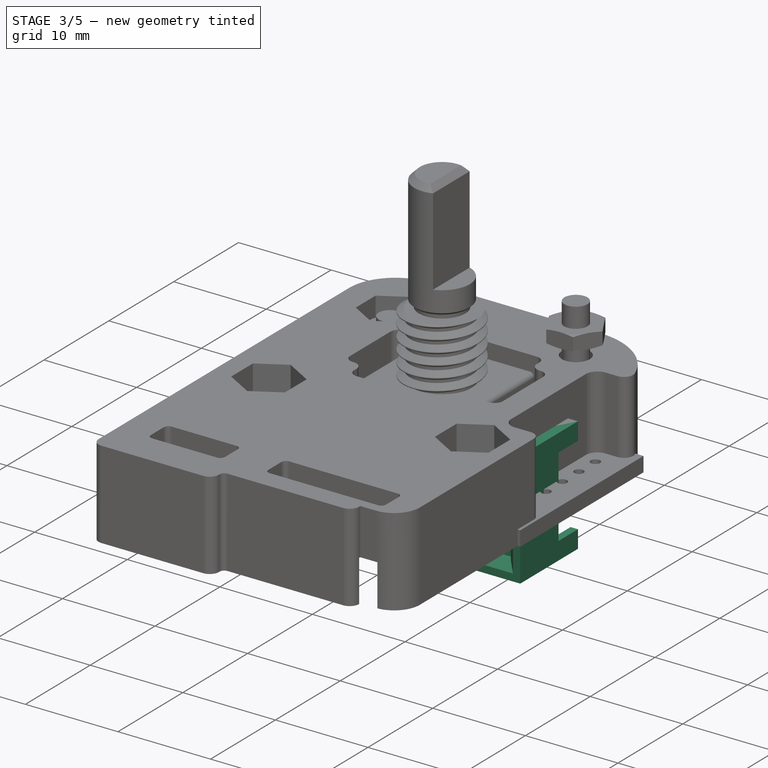
[diagram: stage 3 of 5 — iso view after this stage's code; geometry added in this stage tinted green]
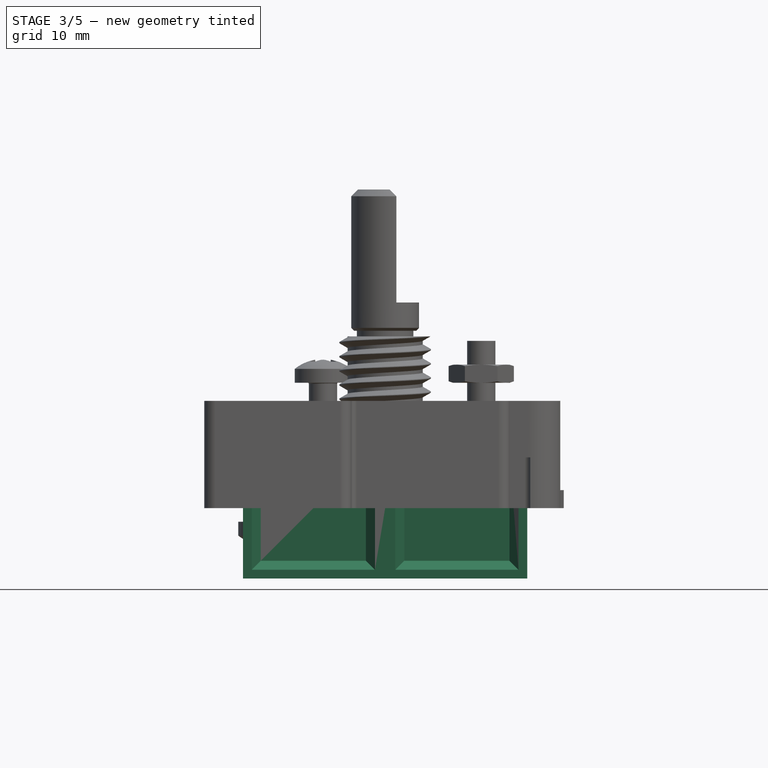
[diagram: stage 3 of 5 — front view after this stage's code; geometry added in this stage tinted green]
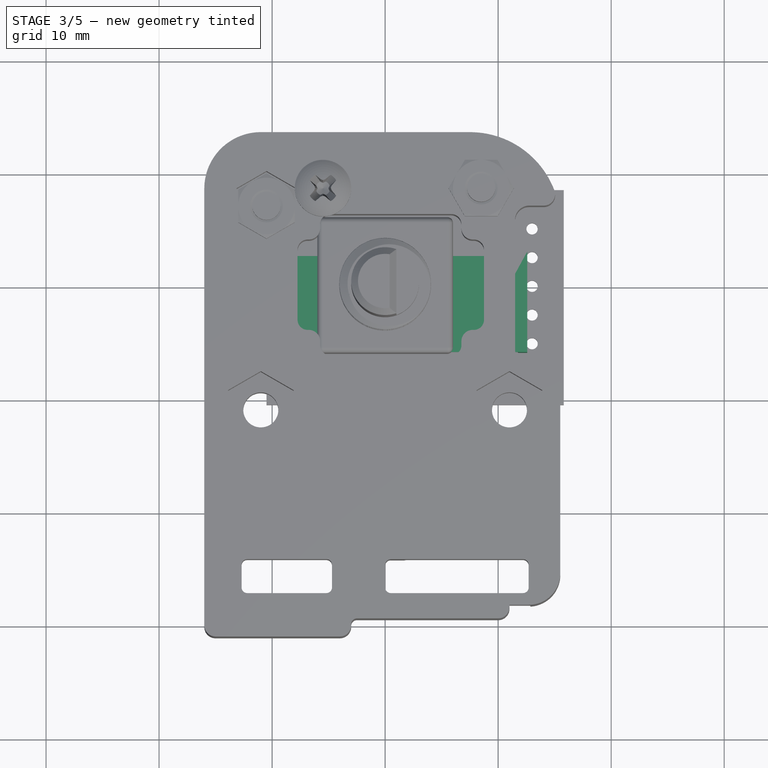
[diagram: stage 3 of 5 — top view after this stage's code; geometry added in this stage tinted green]
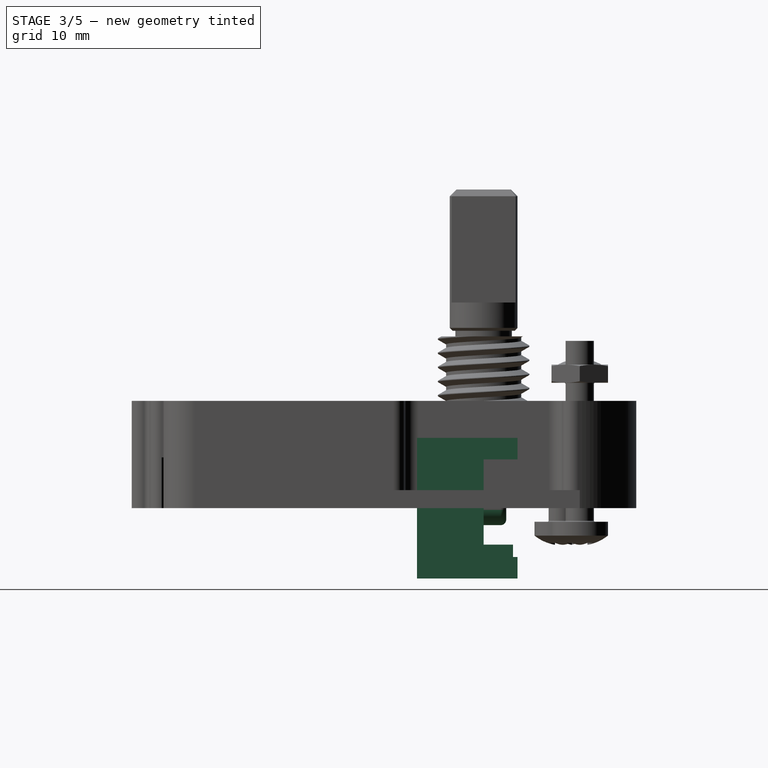
[diagram: stage 3 of 5 — right view after this stage's code; geometry added in this stage tinted green]
FEATURE [Part::Feature] Part__Feature001  label="BTN_A-Brass_pin-5.75mm"
  Placement = pos=(12.7,0,0) rot=(0,0,1;0rad)
  shape: bbox 0.7 x 5.75 x 0.7 mm, 14 faces (baked)
FEATURE [PartDesign::Pad] Pad001
  Length = 5.9
  Length2 = 100
  Placement = pos=(0,0,0) rot=(1,0,0;1.5708rad)
  Profile = -> Sketch013
  Type = 0
FEATURE [Sketcher::SketchObject] Sketch027
  MapMode = 5
  Support = -> [XY_Plane004]
  sketch-geometry (8):
    g0: LineSegment StartX=-10.375 StartY=5.5 StartZ=0 EndX=10.375 EndY=5.5 EndZ=0
    g1: LineSegment StartX=11.375 StartY=4.5 StartZ=0 EndX=11.375 EndY=1 EndZ=0
    g2: LineSegment StartX=10.375 StartY=0 StartZ=0 EndX=-10.375 EndY=0 EndZ=0
    g3: LineSegment StartX=-11.375 StartY=1 StartZ=0 EndX=-11.375 EndY=4.5 EndZ=0
    g4: ArcOfCircle CenterX=-10.375 CenterY=4.5 CenterZ=0 NormalX=0 NormalY=0 NormalZ=1 AngleXU=0 Radius=1 StartAngle=1.5708 EndAngle=3.14159
    g5: ArcOfCircle CenterX=10.375 CenterY=4.5 CenterZ=0 NormalX=0 NormalY=0 NormalZ=1 AngleXU=0 Radius=1 StartAngle=0 EndAngle=1.5708
    g6: ArcOfCircle CenterX=10.375 CenterY=1 CenterZ=0 NormalX=0 NormalY=0 NormalZ=1 AngleXU=0 Radius=1 StartAngle=4.71239 EndAngle=6.28319
    g7: ArcOfCircle CenterX=-10.375 CenterY=1 CenterZ=0 NormalX=0 NormalY=0 NormalZ=1 AngleXU=0 Radius=1 StartAngle=3.14159 EndAngle=4.71239
  constraints (19):
    c: Horizontal(g2)
    c: Vertical(g1)
    c: Vertical(g3)
    c: Tangent(g3,g4) = 1.5708
    c: Tangent(g0,g4) = 1.5708
    c: Tangent(g0,g5) = 1.5708
    c: Tangent(g1,g5) = 1.5708
    c: Tangent(g1,g6) = 1.5708
    c: Tangent(g2,g6) = 1.5708
    c: Tangent(g2,g7) = 1.5708
    c: Tangent(g3,g7) = 1.5708
    c: Radius(g4) = 1
    c: Equal(g5,g6)
    c: Equal(g6,g7)
    c: Equal(g7,g4)
    c: Symmetric(g0,g0,g-2)
    c: PointOnObject(g-1,g2)
    c: DistanceY(g-1,g0) = 5.5
    c: DistanceX(g3,g1) = 22.75
FEATURE [PartDesign::Pad] Pad007  label="LabelPad"
  Length = 0.05
  Length2 = 100
  Profile = -> Sketch027
  Type = 0
FEATURE [PartDesign::Body] Body004  label="LabelBody"
  BaseFeature = -> Pad007
  Group = -> [BaseFeature]
  Origin = -> Origin004
  Placement = pos=(0,0,6.2) rot=(0,0,1;3.14159rad)
  Tip = -> BaseFeature
FEATURE [Sketcher::SketchObject] Sketch018
  MapMode = 5
  Placement = pos=(0,-5.9,1.3e-15) rot=(1,0,0;1.5708rad)
  Support = -> [Pad001]
  sketch-geometry (11):
    g0: LineSegment StartX=-11 StartY=4.65 StartZ=0 EndX=-1.7 EndY=4.65 EndZ=0
    g1: LineSegment StartX=-1.7 StartY=4.65 StartZ=0 EndX=-1.7 EndY=-4.65 EndZ=0
    g2: LineSegment StartX=-1.7 StartY=-4.65 StartZ=0 EndX=-11 EndY=-4.65 EndZ=0
    g3: LineSegment StartX=-11 StartY=-4.65 StartZ=0 EndX=-11 EndY=4.65 EndZ=0
    g4: LineSegment [constr] StartX=-6.35 StartY=4.65 StartZ=0 EndX=-6.35 EndY=-4.65 EndZ=0
    g5: LineSegment StartX=1.7 StartY=4.65 StartZ=0 EndX=11 EndY=4.65 EndZ=0
    g6: LineSegment StartX=11 StartY=4.65 StartZ=0 EndX=11 EndY=-4.65 EndZ=0
    g7: LineSegment StartX=11 StartY=-4.65 StartZ=0 EndX=1.7 EndY=-4.65 EndZ=0
    g8: LineSegment StartX=1.7 StartY=-4.65 StartZ=0 EndX=1.7 EndY=4.65 EndZ=0
    g9: LineSegment [constr] StartX=6.35 StartY=4.65 StartZ=0 EndX=6.35 EndY=-4.65 EndZ=0
    g10: LineSegment [constr] StartX=-11 StartY=4.65 StartZ=0 EndX=1.7 EndY=4.65 EndZ=0
  constraints (31):
    c: Coincident(g0,g1)
    c: Coincident(g1,g2)
    c: Coincident(g2,g3)
    c: Coincident(g3,g0)
    c: Horizontal(g0)
    c: Horizontal(g2)
    c: Vertical(g1)
    c: DistanceY(g3,g3) = 9.3
    c: DistanceX(g0,g0) = 9.3
    c: Symmetric(g0,g2,g-1)
    c: PointOnObject(g4,g0)
    c: PointOnObject(g4,g2)
    c: Symmetric(g0,g0,g4)
    c: DistanceX(g4,g-1) = 6.35
    c: Coincident(g5,g6)
    c: Coincident(g6,g7)
    c: Coincident(g7,g8)
    c: Coincident(g8,g5)
    c: Horizontal(g5)
    c: Horizontal(g7)
    c: Vertical(g6)
    c: Equal(g3,g8) = 9.3
    c: Equal(g0,g5) = 9.3
    c: PointOnObject(g9,g5)
    c: PointOnObject(g9,g7)
    c: Symmetric(g5,g5,g9)
    c: Coincident(g0,g10)
    c: Coincident(g5,g10)
    c: Distance(g10) = 12.7
    c: Horizontal(g10)
    c: Vertical(g8)
FEATURE [PartDesign::Pocket] Pocket008
  BaseFeature = -> Pad001
  Length = 1.4
  Length2 = 100
  Placement = pos=(0,0,0) rot=(1,0,0;1.5708rad)
  Profile = -> Sketch018
  Type = 0
FEATURE [PartDesign::Chamfer] Chamfer
  Base = -> Pocket008 [Edge17,Edge20,Edge19,Edge18,Edge16,Edge13,Edge14,Edge15]
  BaseFeature = -> Pocket008
  Placement = pos=(0,0,0) rot=(1,0,0;1.5708rad)
  Size = 0.8
FEATURE [Sketcher::SketchObject] Sketch015
  ExternalGeometry = -> [Chamfer]
  MapMode = 5
  Placement = pos=(0,0,0) rot=(-1,0,0;1.5708rad)
  Support = -> [Chamfer]
  sketch-geometry (24):
    g0: LineSegment StartX=12.575 StartY=-4.315 StartZ=0 EndX=12.575 EndY=-6.225 EndZ=0
    g1: LineSegment StartX=12.575 StartY=-6.225 StartZ=0 EndX=10.945 EndY=-6.225 EndZ=0
    g2: LineSegment StartX=10.945 StartY=-6.225 StartZ=0 EndX=10.945 EndY=-5.425 EndZ=0
    g3: LineSegment StartX=10.945 StartY=-5.425 StartZ=0 EndX=11.775 EndY=-5.425 EndZ=0
    g4: LineSegment StartX=11.775 StartY=-5.425 StartZ=0 EndX=11.775 EndY=-4.315 EndZ=0
    g5: LineSegment StartX=11.775 StartY=-4.315 StartZ=0 EndX=12.575 EndY=-4.315 EndZ=0
    g6: LineSegment StartX=-10.945 StartY=-6.225 StartZ=0 EndX=-12.575 EndY=-6.225 EndZ=0
    g7: LineSegment StartX=-12.575 StartY=-6.225 StartZ=0 EndX=-12.575 EndY=-4.315 EndZ=0
    g8: LineSegment StartX=-12.575 StartY=-4.315 StartZ=0 EndX=-11.775 EndY=-4.315 EndZ=0
    g9: LineSegment StartX=-11.775 StartY=-4.315 StartZ=0 EndX=-11.775 EndY=-5.425 EndZ=0
    g10: LineSegment StartX=-11.775 StartY=-5.425 StartZ=0 EndX=-10.945 EndY=-5.425 EndZ=0
    g11: LineSegment StartX=-10.945 StartY=-5.425 StartZ=0 EndX=-10.945 EndY=-6.225 EndZ=0
    g12: LineSegment StartX=12.575 StartY=4.315 StartZ=0 EndX=12.575 EndY=6.225 EndZ=0
    g13: LineSegment StartX=12.575 StartY=6.225 StartZ=0 EndX=10.945 EndY=6.225 EndZ=0
    g14: LineSegment StartX=10.945 StartY=6.225 StartZ=0 EndX=10.945 EndY=5.425 EndZ=0
    g15: LineSegment StartX=10.945 StartY=5.425 StartZ=0 EndX=11.775 EndY=5.425 EndZ=0
    g16: LineSegment StartX=11.775 StartY=5.425 StartZ=0 EndX=11.775 EndY=4.315 EndZ=0
    g17: LineSegment StartX=11.775 StartY=4.315 StartZ=0 EndX=12.575 EndY=4.315 EndZ=0
    g18: LineSegment StartX=-11.775 StartY=4.315 StartZ=0 EndX=-11.775 EndY=5.425 EndZ=0
    g19: LineSegment StartX=-11.775 StartY=5.425 StartZ=0 EndX=-10.945 EndY=5.425 EndZ=0
    g20: LineSegment StartX=-10.945 StartY=5.425 StartZ=0 EndX=-10.945 EndY=6.225 EndZ=0
    g21: LineSegment StartX=-10.945 StartY=6.225 StartZ=0 EndX=-12.575 EndY=6.225 EndZ=0
    g22: LineSegment StartX=-12.575 StartY=6.225 StartZ=0 EndX=-12.575 EndY=4.315 EndZ=0
    g23: LineSegment StartX=-12.575 StartY=4.315 StartZ=0 EndX=-11.775 EndY=4.315 EndZ=0
  constraints (68):
    c: Vertical(g0)
    c: Coincident(g0,g1)
    c: Horizontal(g1)
    c: Coincident(g1,g2)
    c: Vertical(g2)
    c: Coincident(g2,g3)
    c: Horizontal(g3)
    c: Coincident(g3,g4)
    c: Vertical(g4)
    c: Coincident(g4,g5)
    c: Coincident(g5,g0)
    c: Horizontal(g5)
    c: DistanceX(g1,g1) = 1.63
    c: DistanceY(g0,g0) = 1.91
    c: DistanceY(g2,g2) = 0.8
    c: DistanceX(g5,g5) = 0.8
    c: Horizontal(g6)
    c: Coincident(g6,g7)
    c: Vertical(g7)
    c: Coincident(g7,g8)
    c: Horizontal(g8)
    c: Coincident(g8,g9)
    c: Vertical(g9)
    c: Coincident(g9,g10)
    c: Horizontal(g10)
    c: Coincident(g10,g11)
    c: Coincident(g11,g6)
    c: Vertical(g11)
    c: Equal(g6,g1)
    c: Equal(g7,g0)
    c: Equal(g8,g5)
    c: Equal(g11,g2)
    c: Vertical(g12)
    c: Coincident(g12,g13)
    c: Horizontal(g13)
    c: Coincident(g13,g14)
    c: Vertical(g14)
    c: Coincident(g14,g15)
    c: Horizontal(g15)
    c: Coincident(g15,g16)
    c: Vertical(g16)
    c: Coincident(g16,g17)
    c: Horizontal(g17)
    c: Vertical(g18)
    c: Coincident(g18,g19)
    c: Horizontal(g19)
    c: Coincident(g19,g20)
    c: Vertical(g20)
    c: Coincident(g20,g21)
    c: Horizontal(g21)
    c: Coincident(g21,g22)
    c: Vertical(g22)
    c: Coincident(g22,g23)
    c: Coincident(g23,g18)
    c: Horizontal(g23)
    c: Equal(g23,g8)
    c: Equal(g17,g5)
    c: Equal(g14,g20)
    c: Equal(g14,g2)
    c: Equal(g12,g22)
    c: Equal(g21,g13)
    c: Equal(g12,g0)
    c: Equal(g13,g1)
    c: Coincident(g-3,g0)
    c: Coincident(g-4,g6)
    c: Coincident(g-5,g12)
    c: Coincident(g-6,g21)
    c: Coincident(g17,g12)
FEATURE [PartDesign::Pad] Pad003
  BaseFeature = -> Chamfer
  Length = 3
  Length2 = 100
  Placement = pos=(0,0,0) rot=(1,0,0;1.5708rad)
  Profile = -> Sketch015
  Type = 0
FEATURE [Sketcher::SketchObject] Sketch030
  ExternalGeometry = -> [Chamfer]
  MapMode = 5
  Placement = pos=(0,0,0) rot=(-1,0,0;1.5708rad)
  Support = -> [Pad003]
  sketch-geometry (24):
    g0: LineSegment StartX=-9.2875 StartY=6.225 StartZ=0 EndX=-3.2875 EndY=6.225 EndZ=0
    g1: LineSegment StartX=-3.2875 StartY=6.225 StartZ=0 EndX=-3.2875 EndY=3.225 EndZ=0
    g2: LineSegment StartX=-3.2875 StartY=3.225 StartZ=0 EndX=-9.2875 EndY=3.225 EndZ=0
    g3: LineSegment StartX=-9.2875 StartY=3.225 StartZ=0 EndX=-9.2875 EndY=6.225 EndZ=0
    g4: LineSegment [constr] StartX=-12.575 StartY=6.225 StartZ=0 EndX=12.575 EndY=6.225 EndZ=0
    g5: LineSegment [constr] StartX=-12.575 StartY=-6.225 StartZ=0 EndX=12.575 EndY=-6.225 EndZ=0
    g6: GeomPoint X=1e-16 Y=6.225 Z=0
    g7: GeomPoint X=4e-16 Y=-6.225 Z=0
    g8: GeomPoint X=-6.2875 Y=-6.225 Z=0
    g9: GeomPoint X=6.2875 Y=-6.225 Z=0
    g10: GeomPoint X=-6.2875 Y=6.225 Z=0
    g11: GeomPoint X=6.2875 Y=6.225 Z=0
    g12: LineSegment StartX=3.2875 StartY=6.225 StartZ=0 EndX=9.2875 EndY=6.225 EndZ=0
    g13: LineSegment StartX=9.2875 StartY=6.225 StartZ=0 EndX=9.2875 EndY=3.225 EndZ=0
    g14: LineSegment StartX=9.2875 StartY=3.225 StartZ=0 EndX=3.2875 EndY=3.225 EndZ=0
    g15: LineSegment StartX=3.2875 StartY=3.225 StartZ=0 EndX=3.2875 EndY=6.225 EndZ=0
    g16: LineSegment StartX=-9.2875 StartY=-3.225 StartZ=0 EndX=-3.2875 EndY=-3.225 EndZ=0
    g17: LineSegment StartX=-3.2875 StartY=-3.225 StartZ=0 EndX=-3.2875 EndY=-6.225 EndZ=0
    g18: LineSegment StartX=-3.2875 StartY=-6.225 StartZ=0 EndX=-9.2875 EndY=-6.225 EndZ=0
    g19: LineSegment StartX=-9.2875 StartY=-6.225 StartZ=0 EndX=-9.2875 EndY=-3.225 EndZ=0
    g20: LineSegment StartX=3.2875 StartY=-3.225 StartZ=0 EndX=9.2875 EndY=-3.225 EndZ=0
    g21: LineSegment StartX=9.2875 StartY=-3.225 StartZ=0 EndX=9.2875 EndY=-6.225 EndZ=0
    g22: LineSegment StartX=9.2875 StartY=-6.225 StartZ=0 EndX=3.2875 EndY=-6.225 EndZ=0
    g23: LineSegment StartX=3.2875 StartY=-6.225 StartZ=0 EndX=3.2875 EndY=-3.225 EndZ=0
  constraints (54):
    c: Coincident(g0,g1)
    c: Coincident(g1,g2)
    c: Coincident(g2,g3)
    c: Coincident(g3,g0)
    c: Horizontal(g0)
    c: Horizontal(g2)
    c: Vertical(g1)
    c: Vertical(g3)
    c: DistanceX(g0,g0) = 6
    c: DistanceY(g1,g1) = 3
    c: Coincident(g4,g-3)
    c: Coincident(g4,g-4)
    c: Coincident(g5,g-6)
    c: Coincident(g5,g-5)
    c: Symmetric(g4,g4,g6)
    c: Symmetric(g5,g5,g7)
    c: Symmetric(g7,g5,g9)
    c: Symmetric(g5,g7,g8)
    c: Symmetric(g4,g6,g10)
    c: Symmetric(g6,g4,g11)
    c: Symmetric(g0,g0,g10)
    c: Coincident(g12,g13)
    c: Coincident(g13,g14)
    c: Coincident(g14,g15)
    c: Coincident(g15,g12)
    c: Horizontal(g12)
    c: Horizontal(g14)
    c: Vertical(g13)
    c: Vertical(g15)
    c: Coincident(g16,g17)
    c: Coincident(g17,g18)
    c: Coincident(g18,g19)
    c: Coincident(g19,g16)
    c: Horizontal(g16)
    c: Horizontal(g18)
    c: Vertical(g17)
    c: Vertical(g19)
    c: Coincident(g20,g21)
    c: Coincident(g21,g22)
    c: Coincident(g22,g23)
    c: Coincident(g23,g20)
    c: Horizontal(g20)
    c: Horizontal(g22)
    c: Vertical(g21)
    c: Vertical(g23)
    c: Equal(g12,g0)
    c: Equal(g20,g16)
    c: Equal(g16,g0)
    c: Equal(g17,g21)
    c: Equal(g21,g13)
    c: Equal(g13,g1)
    c: Symmetric(g18,g17,g8)
    c: Symmetric(g22,g21,g9)
    c: Symmetric(g12,g12,g11)
FEATURE [PartDesign::Pad] Pad004
  BaseFeature = -> Pad003
  Length = 2.6
  Length2 = 100
  Placement = pos=(0,0,0) rot=(1,0,0;1.5708rad)
  Profile = -> Sketch030
  Type = 0
FEATURE [Sketcher::SketchObject] Sketch028
  MapMode = 5
  Placement = pos=(0,0,0) rot=(-1,0,0;1.5708rad)
  Support = -> [Pad004]
  sketch-geometry (1):
    g0: Circle CenterX=0 CenterY=0 CenterZ=0 NormalX=0 NormalY=0 NormalZ=1 AngleXU=0 Radius=1.5
  constraints (2):
    c: Coincident(g0,g-1)
    c: Diameter(g0) = 3
FEATURE [PartDesign::Pad] Pad005
  BaseFeature = -> Pad004
  Length = 2
  Length2 = 100
  Placement = pos=(0,0,0) rot=(1,0,0;1.5708rad)
  Profile = -> Sketch028
  Type = 0
FEATURE [PartDesign::Fillet] Fillet004
  Base = -> Pad005 [Edge179]
  BaseFeature = -> Pad005
  Placement = pos=(0,0,0) rot=(1,0,0;1.5708rad)
  Radius = 0.5
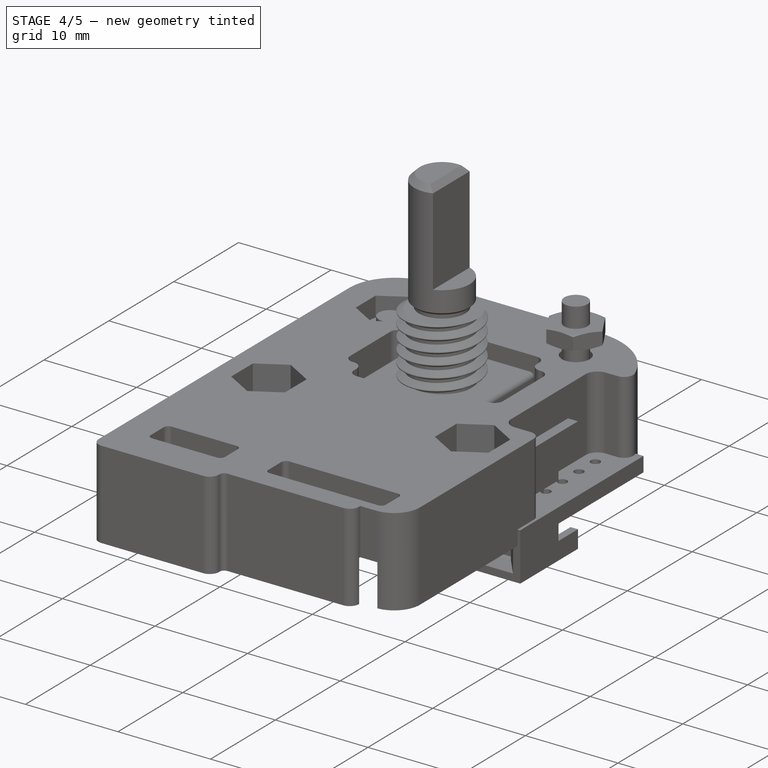
[diagram: stage 4 of 5 — iso view after this stage's code; geometry added in this stage tinted green]
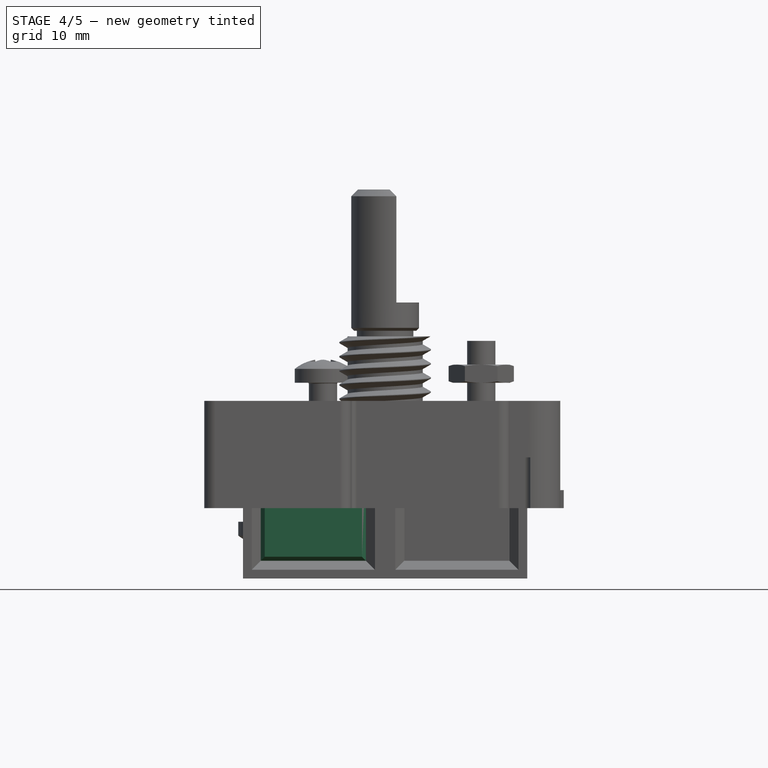
[diagram: stage 4 of 5 — front view after this stage's code; geometry added in this stage tinted green]
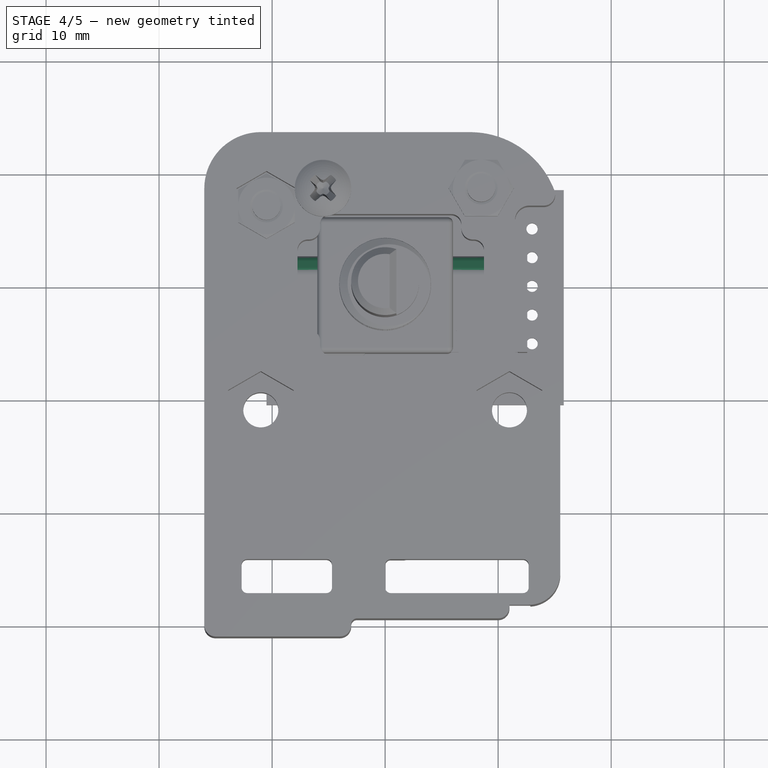
[diagram: stage 4 of 5 — top view after this stage's code; geometry added in this stage tinted green]
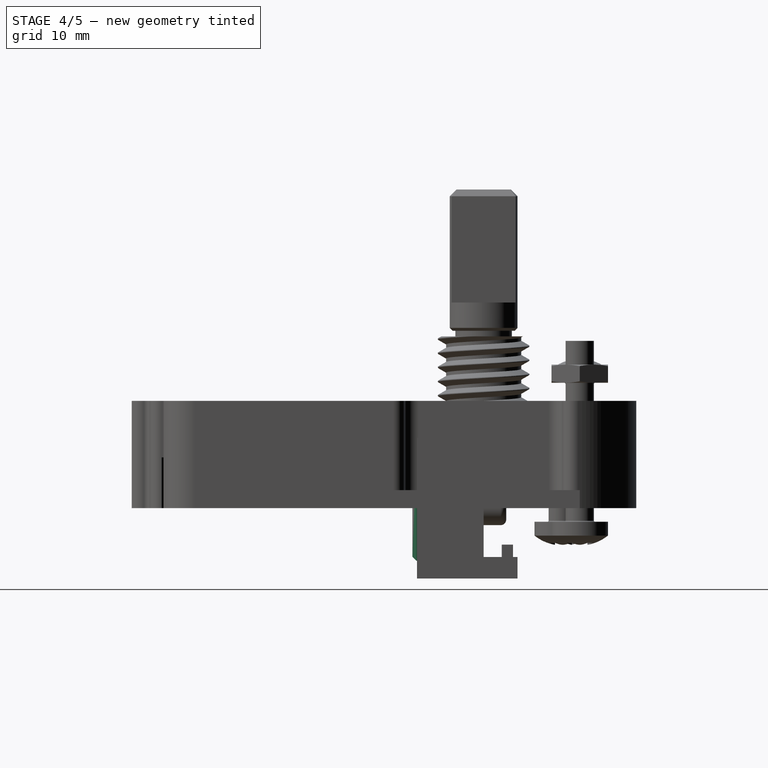
[diagram: stage 4 of 5 — right view after this stage's code; geometry added in this stage tinted green]
FEATURE [Part::Part2DObjectPython] ShapeString  label="LabelTextShapeString"  # Draft 2D object (typed FeaturePython)
  AttachmentOffset = pos=(-6.75,2.8,0.01) rot=(0,0,1;0rad)
  FontFile = <path>
  MapMode = 5
  Placement = pos=(-6.75,2.8,0.06) rot=(0,0,1;0rad)
  Size = 1
  String = 87DC3-201
  Support = -> [Pad007]
  Tracking = 0.05
FEATURE [Part::Extrusion] Extrude  label="LabelTextExtrude"
  Base = -> ShapeString
  Dir = (0,0,1)
  DirMode = 2
  FaceMakerClass = Part::FaceMakerBullseye
  LengthFwd = 0.05
  LengthRev = 0
  Placement = pos=(0,0,6.2) rot=(0,0,1;3.14159rad)
  Solid = true
  Symmetric = false
FEATURE [PartDesign::Chamfer] Chamfer003
  Base = -> Fillet004 [Edge146,Edge147,Edge130,Edge129]
  BaseFeature = -> Fillet004
  Placement = pos=(0,0,0) rot=(1,0,0;1.5708rad)
  Size = 1.3
FEATURE [PartDesign::Fillet] Fillet003
  Base = -> Chamfer003 [Edge10,Edge151,Edge156,Edge158]
  BaseFeature = -> Chamfer003
  Placement = pos=(0,0,0) rot=(1,0,0;1.5708rad)
  Radius = 1.5
FEATURE [PartDesign::Fillet] Fillet002
  Base = -> Fillet003 [Edge164,Edge165,Edge145,Edge9]
  BaseFeature = -> Fillet003
  Placement = pos=(0,0,0) rot=(1,0,0;1.5708rad)
  Radius = 1
FEATURE [Sketcher::SketchObject] Sketch029
  ExternalGeometry = -> [Fillet002]
  MapMode = 5
  Placement = pos=(0,5.2e-15,3.225) rot=(1,0,0;3.14159rad)
  Support = -> [Fillet002]
  sketch-geometry (4):
    g0: LineSegment StartX=-9.2875 StartY=2e-16 StartZ=0 EndX=-3.2875 EndY=2e-16 EndZ=0
    g1: LineSegment StartX=-3.2875 StartY=2e-16 StartZ=0 EndX=-3.2875 EndY=-1.6 EndZ=0
    g2: LineSegment StartX=-3.2875 StartY=-1.6 StartZ=0 EndX=-9.2875 EndY=-1.6 EndZ=0
    g3: LineSegment StartX=-9.2875 StartY=-1.6 StartZ=0 EndX=-9.2875 EndY=2e-16 EndZ=0
  constraints (10):
    c: Coincident(g0,g1)
    c: Coincident(g1,g2)
    c: Coincident(g2,g3)
    c: Coincident(g3,g0)
    c: Vertical(g1)
    c: Coincident(g0,g-3)
    c: DistanceY(g1,g1) = 1.6
    c: Equal(g3,g1)
    c: Equal(g2,g0)
    c: Coincident(g0,g-4)
FEATURE [PartDesign::Pocket] Pocket010
  BaseFeature = -> Fillet002
  Length = 1.8
  Length2 = 100
  Placement = pos=(0,0,0) rot=(1,0,0;1.5708rad)
  Profile = -> Sketch029
  Type = 0
FEATURE [Sketcher::SketchObject] Sketch017
  ExternalGeometry = -> [Pocket010]
  MapMode = 5
  Placement = pos=(0,5.2e-15,3.225) rot=(1,0,0;3.14159rad)
  Support = -> [Pocket010]
  sketch-geometry (4):
    g0: LineSegment StartX=3.2875 StartY=0 StartZ=0 EndX=9.2875 EndY=2e-16 EndZ=0
    g1: LineSegment StartX=9.2875 StartY=2e-16 StartZ=0 EndX=9.2875 EndY=-1.6 EndZ=0
    g2: LineSegment StartX=9.2875 StartY=-1.6 StartZ=0 EndX=3.2875 EndY=-1.6 EndZ=0
    g3: LineSegment StartX=3.2875 StartY=-1.6 StartZ=0 EndX=3.2875 EndY=0 EndZ=0
  constraints (10):
    c: Coincident(g0,g1)
    c: Coincident(g1,g2)
    c: Coincident(g2,g3)
    c: Coincident(g3,g0)
    c: Horizontal(g2)
    c: Vertical(g1)
    c: Vertical(g3)
    c: Coincident(g0,g-3)
    c: Coincident(g0,g-4)
    c: DistanceY(g1,g1) = 1.6
FEATURE [PartDesign::Pocket] Pocket009
  BaseFeature = -> Pocket010
  Length = 1.8
  Length2 = 100
  Placement = pos=(0,0,0) rot=(1,0,0;1.5708rad)
  Profile = -> Sketch017
  Type = 0
FEATURE [PartDesign::Plane] DatumPlane001
  Length = 24.4855
  MapMode = 45
  Placement = pos=(-1.37e-14,1.3,-3.225) rot=(0,0,1;1.5708rad)
  ResizeMode = 0
  Support = -> [Pocket009]
  Width = 29.6355
FEATURE [Sketcher::SketchObject] Sketch014
  ExternalGeometry = -> [Pocket009]
  MapMode = 5
  Placement = pos=(-1.4e-14,1.3,-3.225) rot=(0,0,1;1.5708rad)
  Support = -> [DatumPlane001]
  sketch-geometry (8):
    g0: LineSegment StartX=-1.3 StartY=9.2875 StartZ=0 EndX=0.3 EndY=9.2875 EndZ=0
    g1: LineSegment StartX=0.3 StartY=9.2875 StartZ=0 EndX=0.3 EndY=3.2875 EndZ=0
    g2: LineSegment StartX=0.3 StartY=3.2875 StartZ=0 EndX=-1.3 EndY=3.2875 EndZ=0
    g3: LineSegment StartX=-1.3 StartY=3.2875 StartZ=0 EndX=-1.3 EndY=9.2875 EndZ=0
    g4: LineSegment StartX=-1.3 StartY=-3.2875 StartZ=0 EndX=0.3 EndY=-3.2875 EndZ=0
    g5: LineSegment StartX=0.3 StartY=-3.2875 StartZ=0 EndX=0.3 EndY=-9.2875 EndZ=0
    g6: LineSegment StartX=0.3 StartY=-9.2875 StartZ=0 EndX=-1.3 EndY=-9.2875 EndZ=0
    g7: LineSegment StartX=-1.3 StartY=-9.2875 StartZ=0 EndX=-1.3 EndY=-3.2875 EndZ=0
  constraints (20):
    c: Coincident(g0,g1)
    c: Coincident(g1,g2)
    c: Coincident(g2,g3)
    c: Coincident(g3,g0)
    c: Horizontal(g0)
    c: Horizontal(g2)
    c: Vertical(g1)
    c: Coincident(g0,g-3)
    c: Coincident(g4,g5)
    c: Coincident(g5,g6)
    c: Coincident(g6,g7)
    c: Coincident(g7,g4)
    c: Horizontal(g4)
    c: Horizontal(g6)
    c: Vertical(g5)
    c: Coincident(g4,g-5)
    c: Coincident(g2,g-4)
    c: Coincident(g6,g-6)
    c: DistanceX(g4,g4) = 1.6
    c: Equal(g4,g2)
FEATURE [PartDesign::Pocket] Pocket005  label="BodyFinal_pad"
  BaseFeature = -> Pocket009
  Length = 1.8
  Length2 = 100
  Placement = pos=(0,0,0) rot=(1,0,0;1.5708rad)
  Profile = -> Sketch014
  Type = 0
FEATURE [PartDesign::Plane] DatumPlane
  Length = 29.6355
  MapMode = 5
  Placement = pos=(0,-4.5,3.4e-15) rot=(1,0,0;1.5708rad)
  ResizeMode = 0
  Support = -> [Chamfer]
  Width = 24.4855
FEATURE [Sketcher::SketchObject] Sketch016  label="SketchLeftBtn"
  MapMode = 5
  Placement = pos=(0,-4.5,3e-15) rot=(1,0,0;1.5708rad)
  Support = -> [DatumPlane]
  sketch-geometry (5):
    g0: LineSegment StartX=-11 StartY=4.65 StartZ=0 EndX=-1.7 EndY=4.65 EndZ=0
    g1: LineSegment StartX=-1.7 StartY=4.65 StartZ=0 EndX=-1.7 EndY=-4.65 EndZ=0
    g2: LineSegment StartX=-1.7 StartY=-4.65 StartZ=0 EndX=-11 EndY=-4.65 EndZ=0
    g3: LineSegment StartX=-11 StartY=-4.65 StartZ=0 EndX=-11 EndY=4.65 EndZ=0
    g4: LineSegment [constr] StartX=-6.35 StartY=4.65 StartZ=0 EndX=-6.35 EndY=-4.65 EndZ=0
  constraints (14):
    c: Coincident(g0,g1)
    c: Coincident(g1,g2)
    c: Coincident(g2,g3)
    c: Coincident(g3,g0)
    c: Horizontal(g0)
    c: Horizontal(g2)
    c: Vertical(g1)
    c: DistanceY(g3,g3) = 9.3
    c: DistanceX(g0,g0) = 9.3
    c: Symmetric(g0,g2,g-1)
    c: PointOnObject(g4,g0)
    c: PointOnObject(g4,g2)
    c: Symmetric(g0,g0,g4)
    c: DistanceX(g4,g-1) = 6.35
FEATURE [Sketcher::SketchObject] Sketch011  label="SketchRightBtn"
  MapMode = 5
  Placement = pos=(0,-4.5,3e-15) rot=(1,0,0;1.5708rad)
  Support = -> [DatumPlane]
  sketch-geometry (5):
    g0: LineSegment StartX=1.7 StartY=4.65 StartZ=0 EndX=11 EndY=4.65 EndZ=0
    g1: LineSegment StartX=11 StartY=4.65 StartZ=0 EndX=11 EndY=-4.65 EndZ=0
    g2: LineSegment StartX=11 StartY=-4.65 StartZ=0 EndX=1.7 EndY=-4.65 EndZ=0
    g3: LineSegment StartX=1.7 StartY=-4.65 StartZ=0 EndX=1.7 EndY=4.65 EndZ=0
    g4: LineSegment [constr] StartX=6.35 StartY=4.65 StartZ=0 EndX=6.35 EndY=-4.65 EndZ=0
  constraints (14):
    c: Coincident(g0,g1)
    c: Coincident(g1,g2)
    c: Coincident(g2,g3)
    c: Coincident(g3,g0)
    c: Horizontal(g0)
    c: Horizontal(g2)
    c: Vertical(g1)
    c: DistanceY(g3,g3) = 9.3
    c: DistanceX(g0,g0) = 9.3
    c: Symmetric(g0,g2,g-1)
    c: PointOnObject(g4,g0)
    c: PointOnObject(g4,g2)
    c: Symmetric(g0,g0,g4)
    c: DistanceX(g4,g-1) = -6.35
FEATURE [PartDesign::Pad] Pad006
  Length = 1.8
  Length2 = 100
  Placement = pos=(0,-4.5,5e-15) rot=(1,0,0;1.5708rad)
  Profile = -> Sketch016
  Type = 0
FEATURE [PartDesign::Chamfer] Chamfer001  label="BtnLeftChamfer"
  Base = -> Pad006 [Face6]
  BaseFeature = -> Pad006
  Placement = pos=(0,-4.5,5e-15) rot=(1,0,0;1.5708rad)
  Size = 0.35
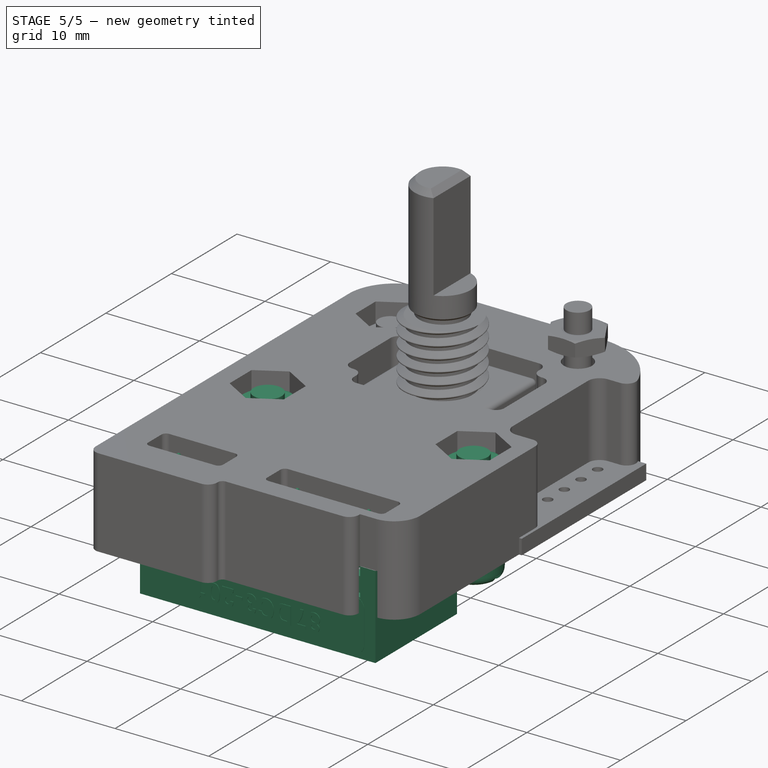
[diagram: stage 5 of 5 — iso view after this stage's code; geometry added in this stage tinted green]
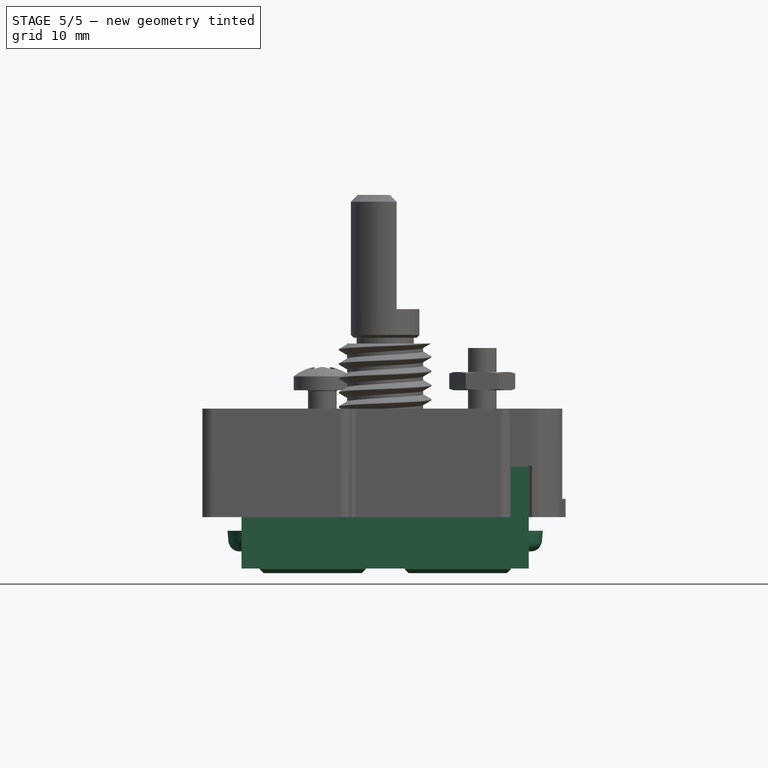
[diagram: stage 5 of 5 — front view after this stage's code; geometry added in this stage tinted green]
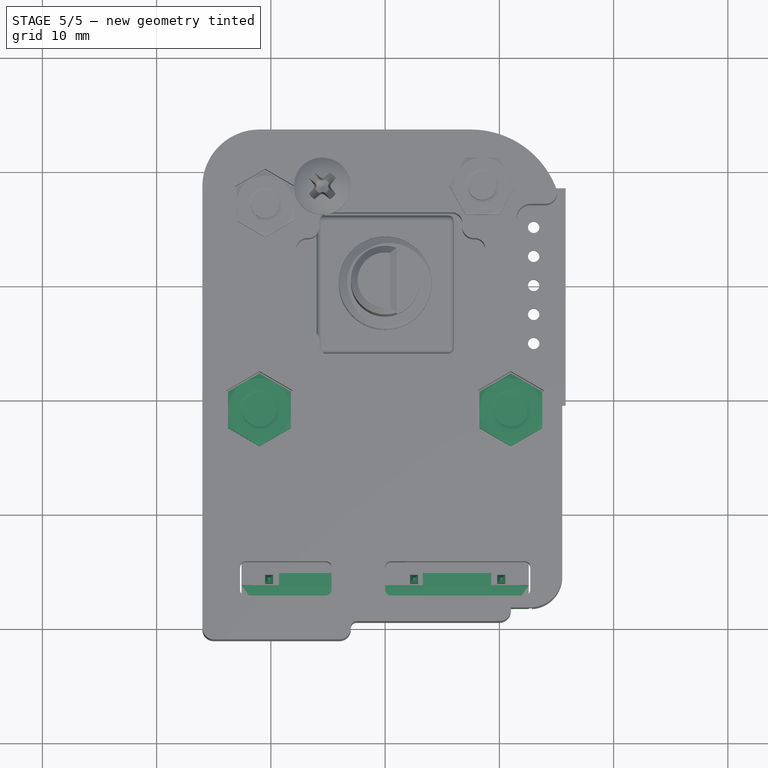
[diagram: stage 5 of 5 — top view after this stage's code; geometry added in this stage tinted green]
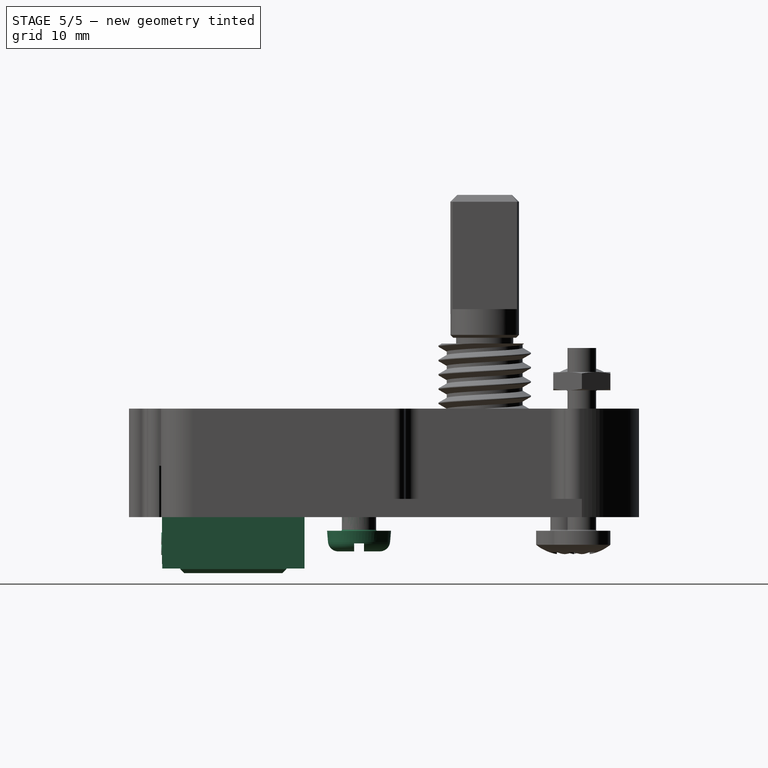
[diagram: stage 5 of 5 — right view after this stage's code; geometry added in this stage tinted green]
FEATURE [Sketcher::SketchObject] Sketch012
  MapMode = 5
  Placement = pos=(0,0,0) rot=(1,0,0;1.5708rad)
  Support = -> [XZ_Plane003]
  sketch-geometry (12):
    g0: LineSegment StartX=-11.725 StartY=5.425 StartZ=0 EndX=11.725 EndY=5.425 EndZ=0
    g1: LineSegment StartX=11.725 StartY=5.425 StartZ=0 EndX=11.725 EndY=4.275 EndZ=0
    g2: LineSegment StartX=11.725 StartY=4.275 StartZ=0 EndX=12.575 EndY=4.275 EndZ=0
    g3: LineSegment StartX=12.575 StartY=4.275 StartZ=0 EndX=12.575 EndY=-4.275 EndZ=0
    g4: LineSegment StartX=12.575 StartY=-4.275 StartZ=0 EndX=11.725 EndY=-4.275 EndZ=0
    g5: LineSegment StartX=11.725 StartY=-4.275 StartZ=0 EndX=11.725 EndY=-5.425 EndZ=0
    g6: LineSegment StartX=11.725 StartY=-5.425 StartZ=0 EndX=-11.725 EndY=-5.425 EndZ=0
    g7: LineSegment StartX=-11.725 StartY=-5.425 StartZ=0 EndX=-11.725 EndY=-4.275 EndZ=0
    g8: LineSegment StartX=-11.725 StartY=-4.275 StartZ=0 EndX=-12.575 EndY=-4.275 EndZ=0
    g9: LineSegment StartX=-12.575 StartY=-4.275 StartZ=0 EndX=-12.575 EndY=4.275 EndZ=0
    g10: LineSegment StartX=-12.575 StartY=4.275 StartZ=0 EndX=-11.725 EndY=4.275 EndZ=0
    g11: LineSegment StartX=-11.725 StartY=4.275 StartZ=0 EndX=-11.725 EndY=5.425 EndZ=0
  constraints (34):
    c: Horizontal(g0)
    c: Coincident(g0,g1)
    c: Vertical(g1)
    c: Coincident(g1,g2)
    c: Horizontal(g2)
    c: Coincident(g2,g3)
    c: Vertical(g3)
    c: Coincident(g3,g4)
    c: Horizontal(g4)
    c: Coincident(g4,g5)
    c: Vertical(g5)
    c: Coincident(g5,g6)
    c: Coincident(g6,g7)
    c: Vertical(g7)
    c: Coincident(g7,g8)
    c: Horizontal(g8)
    c: Coincident(g8,g9)
    c: Coincident(g9,g10)
    c: Coincident(g10,g11)
    c: Coincident(g11,g0)
    c: Equal(g11,g1)
    c: Equal(g1,g5)
    c: Equal(g5,g7)
    c: Equal(g2,g4)
    c: Equal(g4,g8)
    c: Equal(g8,g10)
    c: Equal(g3,g9)
    c: Equal(g0,g6)
    c: DistanceX(g9,g2) = 25.15
    c: DistanceY(g5,g0) = 10.85
    c: DistanceX(g10,g10) = 0.85
    c: DistanceY(g11,g11) = 1.15
    c: Symmetric(g6,g6,g-2)
    c: Symmetric(g9,g9,g-1)
FEATURE [Sketcher::SketchObject] Sketch013
  MapMode = 5
  Placement = pos=(0,0,0) rot=(1,0,0;1.5708rad)
  Support = -> [XZ_Plane004]
  sketch-geometry (4):
    g0: LineSegment StartX=-12.575 StartY=6.225 StartZ=0 EndX=12.575 EndY=6.225 EndZ=0
    g1: LineSegment StartX=12.575 StartY=6.225 StartZ=0 EndX=12.575 EndY=-6.225 EndZ=0
    g2: LineSegment StartX=12.575 StartY=-6.225 StartZ=0 EndX=-12.575 EndY=-6.225 EndZ=0
    g3: LineSegment StartX=-12.575 StartY=-6.225 StartZ=0 EndX=-12.575 EndY=6.225 EndZ=0
  constraints (10):
    c: Coincident(g0,g1)
    c: Coincident(g1,g2)
    c: Coincident(g2,g3)
    c: Coincident(g3,g0)
    c: Horizontal(g2)
    c: Vertical(g1)
    c: DistanceX(g0,g0) = 25.15
    c: DistanceY(g3,g3) = 12.45
    c: Symmetric(g0,g0,g-2)
    c: Symmetric(g2,g0,g-1)
FEATURE [PartDesign::Pad] Pad008  label="PCBPad"
  Length = 1.6
  Length2 = 100
  Placement = pos=(0,0,0) rot=(1,0,0;1.5708rad)
  Profile = -> Sketch012
  Reversed = true
  Type = 0
FEATURE [Part::Feature] Part__Feature004  label="PinHeader_1x03_P254mm_Vertical"
  Placement = pos=(0,-30.89,0) rot=(0,0,1;1.5708rad)
  shape: bbox 7.62 x 2.54 x 11.54 mm, 76 faces (baked)
FEATURE [Part::Feature] Part__Feature002  label="BTN_B-Brass_pin-5.75mm"
  shape: bbox 0.7 x 5.75 x 0.7 mm, 14 faces (baked)
FEATURE [Part::FeaturePython] Screw001  label="M3x10-Screw"  # Fasteners workbench fastener (typed FeaturePython)
  Placement = pos=(11,-11,-1.2) rot=(1,0,0;3.14159rad)
  diameter = 4
  invert = false
  length = 3
  lengthCustom = 10
  matchOuter = false
  offset = 0
  thread = false
  type = 11
FEATURE [PartDesign::Body] Body003  label="PCBBody"
  Group = -> [Sketch012,Pad008]
  Origin = -> Origin003
  Tip = -> Pad008
FEATURE [Part::FeaturePython] Screw  label="M3x10-Screw001"  # Fasteners workbench fastener (typed FeaturePython)
  Placement = pos=(-11,-11,-1.2) rot=(1,0,0;3.14159rad)
  diameter = 4
  invert = false
  length = 3
  lengthCustom = 10
  matchOuter = false
  offset = 0
  thread = false
  type = 11
FEATURE [PartDesign::FeatureBase] BaseFeature
  BaseFeature = -> Pad007
FEATURE [PartDesign::Pad] Pad002
  Length = 1.8
  Length2 = 100
  Placement = pos=(0,-4.5,5e-15) rot=(1,0,0;1.5708rad)
  Profile = -> Sketch011
  Type = 0
FEATURE [PartDesign::Chamfer] Chamfer002  label="BtnRightChamfer"
  Base = -> Pad002 [Face6]
  BaseFeature = -> Pad002
  Placement = pos=(0,-4.5,5e-15) rot=(1,0,0;1.5708rad)
  Size = 0.35
FEATURE [PartDesign::Body] Body002  label="ButtonRightBody"
  Group = -> [Sketch011,Pad002,Chamfer002]
  Origin = -> Origin002
  Tip = -> Chamfer002
FEATURE [PartDesign::Body] Body005  label="87DC3-201Body"
  Group = -> [Sketch013,Pad001,Sketch018,Pocket008,Chamfer,DatumPlane,Sketch015,Pad003,Sketch030,Pad004,Sketch028,Pad005,Fillet004,Chamfer003,Fillet003,Fillet002,Sketch029,Pocket010,Sketch017,Pocket009,DatumPlane001,Sketch014,Pocket005]
  Origin = -> Origin006
  Tip = -> Pocket005
FEATURE [PartDesign::Body] Body001  label="ButtonLeftBody"
  Group = -> [Sketch016,Pad006,Chamfer001]
  Origin = -> Origin001
  Tip = -> Chamfer001
FEATURE [Part::FeaturePython] Nut  label="M3-Nut"  # Fasteners workbench fastener (typed FeaturePython)
  Placement = pos=(-11,-11,6) rot=(0,0,1;0.523599rad)
  diameter = 4
  invert = false
  matchOuter = false
  offset = 0
  thread = false
  type = 6
FEATURE [Part::FeaturePython] Nut001  label="M3-Nut001"  # Fasteners workbench fastener (typed FeaturePython)
  Placement = pos=(11,-11,6) rot=(0,0,1;0.523599rad)
  diameter = 4
  invert = false
  matchOuter = false
  offset = 0
  thread = false
  type = 6
FEATURE [Part::Feature] Part__Feature  label="COMMON-Brass_pin-5.75mm"
  Placement = pos=(20.32,0,0) rot=(0,0,1;0rad)
  shape: bbox 0.7 x 5.75 x 0.7 mm, 14 faces (baked)
FEATURE [Part::Compound] Compound  label="Compound_Grayhill_87DC3-201"
  Links = -> [Body005,Body002,Body004,Body001,Pad007,Part__Feature001,Part__Feature,Body003,Part__Feature002,Extrude]
  Placement = pos=(0,-22,1.4) rot=(1,0,0;1.5708rad)
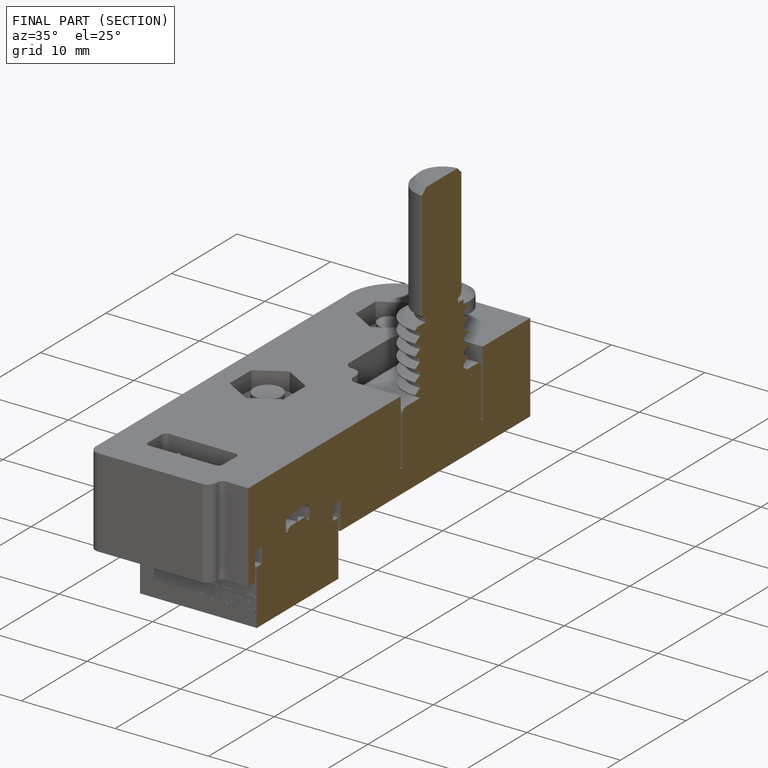
[diagram: finished part — half-section view (interior)]
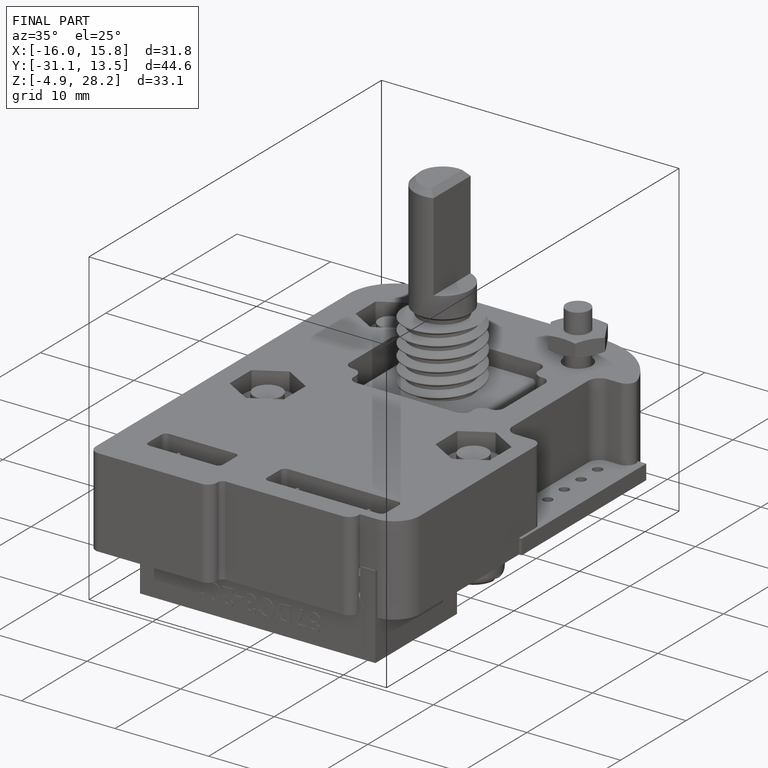
[diagram: finished part — iso view with bounding-box wireframe]
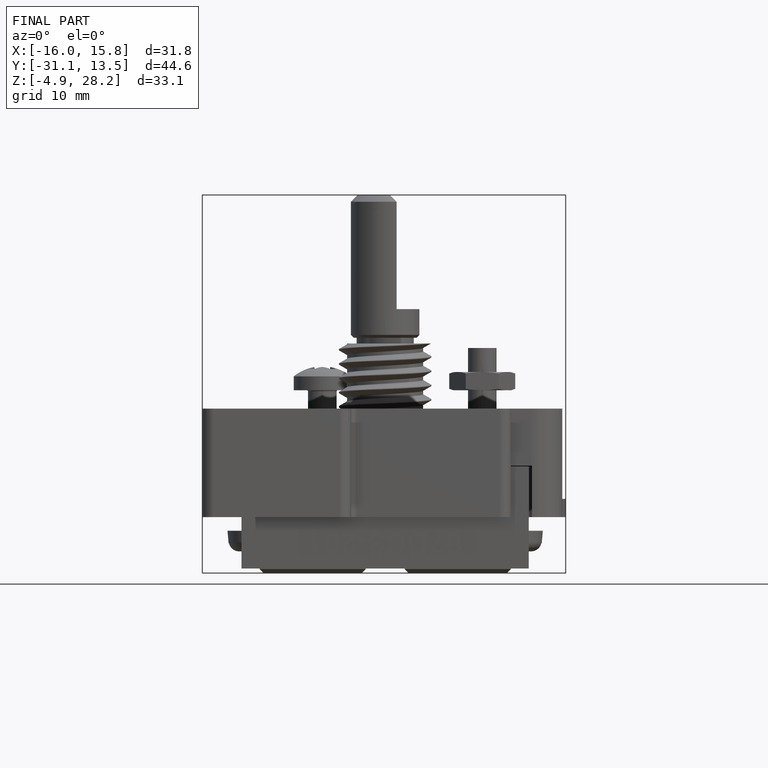
[diagram: finished part — front view with bounding-box wireframe]
